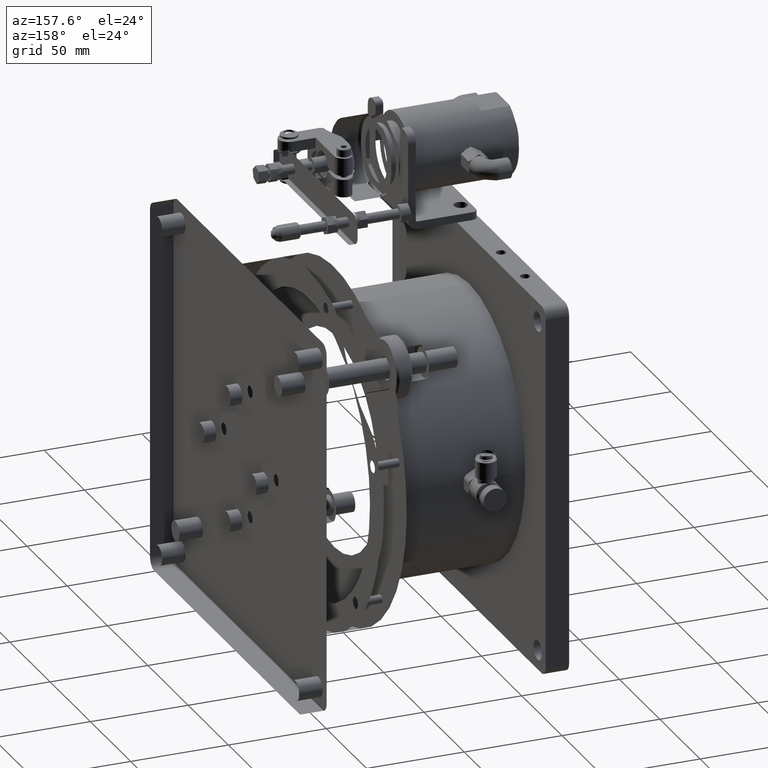
[diagram: clean part render]
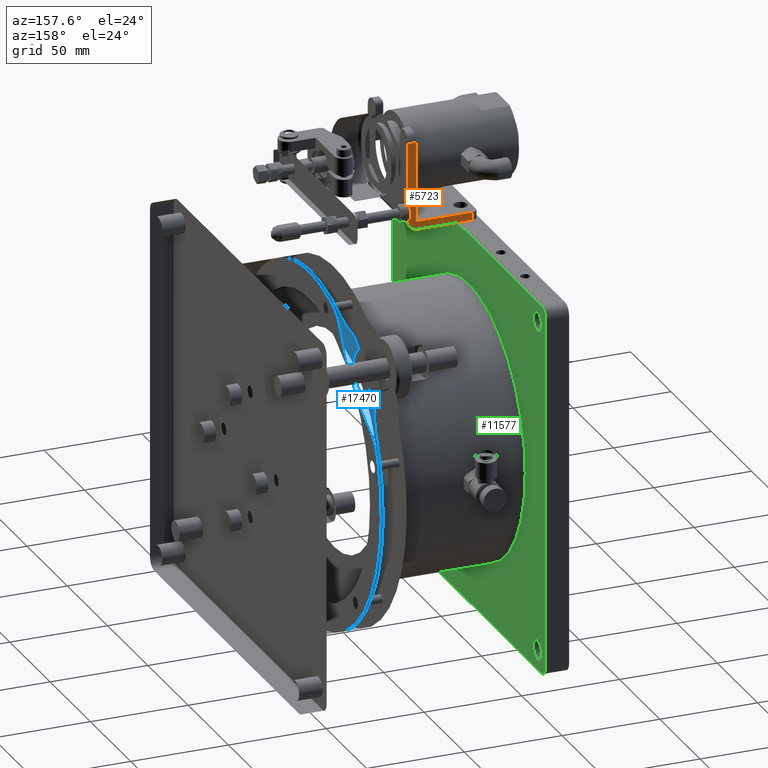
[diagram: same view with three faces highlighted in distinct colors, each labeled with its STEP entity id]
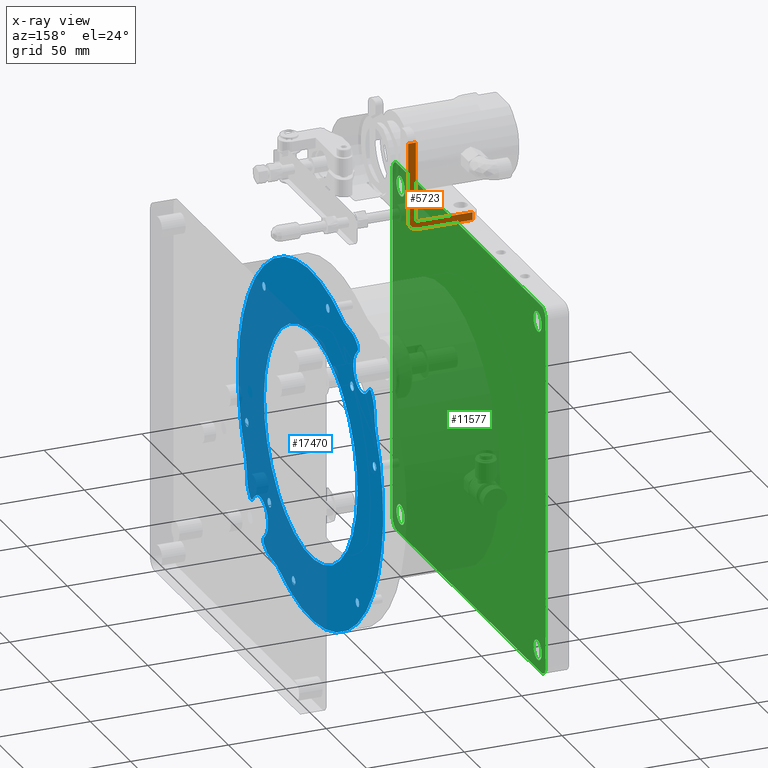
[diagram: x-ray of the same camera — body ghosted, the three highlighted faces saturated]
A machine part, auxiliary view with three faces highlighted in distinct colors.
The next image is the same camera in x-ray (body ghosted, the three faces saturated) — at least one of them is partly hidden behind the body in this view.
Their STEP definitions:

[orange] entity #5723 — the highlighted planar face has unit normal (-0, 1, -0).
#180 = VECTOR ( 'NONE', #14243, 1000.000000000000000 ) ;
#1328 = DIRECTION ( 'NONE',  ( 0.000000000000000000, 1.110223024625156294E-16, 1.000000000000000000 ) ) ;
#1596 = CIRCLE ( 'NONE', #16833, 4.736599999999979715 ) ;
#1737 = ORIENTED_EDGE ( 'NONE', *, *, #13602, .F. ) ;
#1895 = VECTOR ( 'NONE', #18884, 1000.000000000000000 ) ;
#1972 = EDGE_CURVE ( 'NONE', #2822, #14278, #8678, .T. ) ;
#2252 = CARTESIAN_POINT ( 'NONE',  ( 455.9949486138146426, -14.99999999999998579, 709.7720284903501806 ) ) ;
#2709 = DIRECTION ( 'NONE',  ( 2.276784909277185655E-17, -1.000000000000000000, 1.110223024625156294E-16 ) ) ;
#2822 = VERTEX_POINT ( 'NONE', #7828 ) ;
#3416 = PLANE ( 'NONE',  #21406 ) ;
#4237 = EDGE_CURVE ( 'NONE', #10252, #16388, #16296, .T. ) ;
#4426 = EDGE_CURVE ( 'NONE', #16388, #17155, #1596, .T. ) ;
#4634 = DIRECTION ( 'NONE',  ( -2.276784909277185963E-17, 1.000000000000000000, -1.110223024625156294E-16 ) ) ;
#5082 = CARTESIAN_POINT ( 'NONE',  ( 460.7315486138147662, -14.99999999999998401, 750.0354284903502275 ) ) ;
#5235 = CARTESIAN_POINT ( 'NONE',  ( 424.7315486138146525, -14.99999999999998934, 709.0354284903502275 ) ) ;
#5475 = AXIS2_PLACEMENT_3D ( 'NONE', #12896, #12786, #9901 ) ;
#5723 = ADVANCED_FACE ( 'NONE', ( #11632 ), #3416, .T. ) ;
#6076 = EDGE_CURVE ( 'NONE', #10252, #2822, #19675, .T. ) ;
#6296 = DIRECTION ( 'NONE',  ( 1.000000000000000000, -3.856209715102963619E-33, -3.473364927200039315E-17 ) ) ;
#6412 = CARTESIAN_POINT ( 'NONE',  ( 424.7315486138146525, -14.99999999999998934, 705.0354284903501139 ) ) ;
#6565 = CARTESIAN_POINT ( 'NONE',  ( 460.7315486138147094, -14.99999999999998224, 750.0354284903502275 ) ) ;
#6574 = VECTOR ( 'NONE', #21309, 1000.000000000000000 ) ;
#6599 = CARTESIAN_POINT ( 'NONE',  ( 427.7315486138146525, -14.99999999999998934, 705.0354284903501139 ) ) ;
#6668 = VECTOR ( 'NONE', #14990, 1000.000000000000000 ) ;
#7828 = CARTESIAN_POINT ( 'NONE',  ( 427.7315486138146525, -14.99999999999998934, 709.0354284903502275 ) ) ;
#8058 = EDGE_CURVE ( 'NONE', #17651, #16186, #12456, .T. ) ;
#8303 = ORIENTED_EDGE ( 'NONE', *, *, #6076, .T. ) ;
#8545 = VERTEX_POINT ( 'NONE', #5082 ) ;
#8678 = LINE ( 'NONE', #5235, #1895 ) ;
#8968 = LINE ( 'NONE', #6565, #6668 ) ;
#9136 = DIRECTION ( 'NONE',  ( 0.000000000000000000, 0.000000000000000000, 1.000000000000000000 ) ) ;
#9698 = CARTESIAN_POINT ( 'NONE',  ( 456.7315486138145957, -14.99999999999998757, 709.7720284903501806 ) ) ;
#9901 = DIRECTION ( 'NONE',  ( 0.000000000000000000, 0.000000000000000000, 1.000000000000000000 ) ) ;
#9916 = CARTESIAN_POINT ( 'NONE',  ( 456.7315486138146525, -14.99999999999998224, 750.0354284903502275 ) ) ;
#10176 = CARTESIAN_POINT ( 'NONE',  ( 460.7315486138145957, -14.99999999999998579, 709.0354284903502275 ) ) ;
#10252 = VERTEX_POINT ( 'NONE', #6599 ) ;
#10954 = LINE ( 'NONE', #10176, #19454 ) ;
#11192 = CARTESIAN_POINT ( 'NONE',  ( 442.7315486138145957, -14.99999999999998934, 705.0354284903501139 ) ) ;
#11417 = EDGE_LOOP ( 'NONE', ( #14870, #14004, #14614, #15986, #1737, #13579, #12446, #8303 ) ) ;
#11549 = CARTESIAN_POINT ( 'NONE',  ( 460.7315486138145957, -14.99999999999998579, 709.7720284903501806 ) ) ;
#11632 = FACE_OUTER_BOUND ( 'NONE', #11417, .T. ) ;
#12446 = ORIENTED_EDGE ( 'NONE', *, *, #4237, .F. ) ;
#12456 = LINE ( 'NONE', #14557, #6574 ) ;
#12786 = DIRECTION ( 'NONE',  ( 2.276784909277185655E-17, -1.000000000000000000, 1.110223024625156294E-16 ) ) ;
#12896 = CARTESIAN_POINT ( 'NONE',  ( 455.9949486138146426, -14.99999999999998579, 709.7720284903501806 ) ) ;
#12950 = CIRCLE ( 'NONE', #5475, 0.7365999999999761627 ) ;
#13579 = ORIENTED_EDGE ( 'NONE', *, *, #4426, .F. ) ;
#13602 = EDGE_CURVE ( 'NONE', #17155, #8545, #10954, .T. ) ;
#14004 = ORIENTED_EDGE ( 'NONE', *, *, #20379, .T. ) ;
#14243 = DIRECTION ( 'NONE',  ( 0.000000000000000000, 1.110223024625156294E-16, 1.000000000000000000 ) ) ;
#14278 = VERTEX_POINT ( 'NONE', #14282 ) ;
#14282 = CARTESIAN_POINT ( 'NONE',  ( 455.9949486138146426, -14.99999999999998757, 709.0354284903502275 ) ) ;
#14557 = CARTESIAN_POINT ( 'NONE',  ( 456.7315486138145957, -14.99999999999998934, 709.0354284903502275 ) ) ;
#14614 = ORIENTED_EDGE ( 'NONE', *, *, #8058, .T. ) ;
#14870 = ORIENTED_EDGE ( 'NONE', *, *, #1972, .T. ) ;
#14990 = DIRECTION ( 'NONE',  ( -1.000000000000000000, -2.276784909277146828E-17, 3.526214988115134457E-15 ) ) ;
#15102 = EDGE_CURVE ( 'NONE', #8545, #16186, #8968, .T. ) ;
#15751 = VECTOR ( 'NONE', #6296, 1000.000000000000000 ) ;
#15907 = CARTESIAN_POINT ( 'NONE',  ( 427.7315486138146525, -14.99999999999998934, 705.0354284903501139 ) ) ;
#15986 = ORIENTED_EDGE ( 'NONE', *, *, #15102, .F. ) ;
#16186 = VERTEX_POINT ( 'NONE', #9916 ) ;
#16296 = LINE ( 'NONE', #11192, #15751 ) ;
#16388 = VERTEX_POINT ( 'NONE', #20622 ) ;
#16833 = AXIS2_PLACEMENT_3D ( 'NONE', #2252, #2709, #9136 ) ;
#17155 = VERTEX_POINT ( 'NONE', #11549 ) ;
#17651 = VERTEX_POINT ( 'NONE', #9698 ) ;
#18884 = DIRECTION ( 'NONE',  ( 1.000000000000000000, 2.276784909277185963E-17, -2.527739028398629347E-33 ) ) ;
#19454 = VECTOR ( 'NONE', #21798, 1000.000000000000000 ) ;
#19675 = LINE ( 'NONE', #15907, #180 ) ;
#20379 = EDGE_CURVE ( 'NONE', #14278, #17651, #12950, .T. ) ;
#20622 = CARTESIAN_POINT ( 'NONE',  ( 455.9949486138146426, -14.99999999999998757, 705.0354284903501139 ) ) ;
#21309 = DIRECTION ( 'NONE',  ( 0.000000000000000000, 1.864450622875941762E-16, 1.000000000000000000 ) ) ;
#21406 = AXIS2_PLACEMENT_3D ( 'NONE', #6412, #4634, #1328 ) ;
#21798 = DIRECTION ( 'NONE',  ( 3.504180601225612135E-15, -0.000000000000000000, 1.000000000000000000 ) ) ;

[blue] entity #17470 — the highlighted planar face has unit normal (1, -0, -0).
#1 = CARTESIAN_POINT ( 'NONE',  ( 516.7315486138146525, -1.151856388049034967E-15, 610.0354284903502275 ) ) ;
#11 = DIRECTION ( 'NONE',  ( 0.000000000000000000, 0.000000000000000000, -1.000000000000000000 ) ) ;
#81 = CARTESIAN_POINT ( 'NONE',  ( 516.7315486138146525, 55.62401589808634128, 593.3998165531526183 ) ) ;
#103 = ORIENTED_EDGE ( 'NONE', *, *, #13744, .F. ) ;
#123 = CARTESIAN_POINT ( 'NONE',  ( 516.7315486138146525, -7.719931481626182368, 667.5231590594696627 ) ) ;
#178 = CARTESIAN_POINT ( 'NONE',  ( 516.7315486138146525, 52.65379172517454265, 663.0941005525645551 ) ) ;
#189 = CARTESIAN_POINT ( 'NONE',  ( 516.7315486138147662, 57.96124821162960927, 607.5352091903916971 ) ) ;
#229 = CARTESIAN_POINT ( 'NONE',  ( 516.7315486138147662, 5.492039062777954506, 667.7753638494918960 ) ) ;
#293 = CARTESIAN_POINT ( 'NONE',  ( 516.7315486138146525, 53.31385742774828174, 587.1960031962834137 ) ) ;
#329 = AXIS2_PLACEMENT_3D ( 'NONE', #1, #18514, #11418 ) ;
#330 = CARTESIAN_POINT ( 'NONE',  ( 516.7315486138147662, -49.93818642846483158, 556.9431047220784876 ) ) ;
#346 = AXIS2_PLACEMENT_3D ( 'NONE', #3445, #10223, #4992 ) ;
#347 = ORIENTED_EDGE ( 'NONE', *, *, #18131, .F. ) ;
#355 = EDGE_CURVE ( 'NONE', #15082, #9067, #11135, .T. ) ;
#360 = EDGE_CURVE ( 'NONE', #8481, #1607, #18165, .T. ) ;
#396 = CARTESIAN_POINT ( 'NONE',  ( 516.7315486138146525, 49.20802945744485868, 660.3892239331879637 ) ) ;
#406 = CARTESIAN_POINT ( 'NONE',  ( 516.7315486138146525, 57.99998141625346904, 612.0371022042066897 ) ) ;
#413 = LINE ( 'NONE', #2386, #11195 ) ;
#436 = CARTESIAN_POINT ( 'NONE',  ( 516.7315486138146525, -52.08728368707946998, 556.6756086704634754 ) ) ;
#446 = EDGE_LOOP ( 'NONE', ( #4597 ) ) ;
#467 = ORIENTED_EDGE ( 'NONE', *, *, #17469, .F. ) ;
#493 = CARTESIAN_POINT ( 'NONE',  ( 516.7315486138146525, 49.93818642841037558, 663.1277522585965016 ) ) ;
#515 = DIRECTION ( 'NONE',  ( 0.000000000000000000, 0.000000000000000000, 1.000000000000000000 ) ) ;
#533 = VERTEX_POINT ( 'NONE', #20114 ) ;
#575 = CARTESIAN_POINT ( 'NONE',  ( 516.7315486138147662, -47.68006271602732937, 577.0109367064944763 ) ) ;
#607 = CARTESIAN_POINT ( 'NONE',  ( 516.7315486138145388, 52.14248729402239491, 663.3726838816661484 ) ) ;
#618 = CARTESIAN_POINT ( 'NONE',  ( 516.7315486138147662, 9.442756330896040495, 552.7940710441282590 ) ) ;
#670 = FACE_BOUND ( 'NONE', #7610, .T. ) ;
#691 = CIRCLE ( 'NONE', #19451, 10.00000000000000888 ) ;
#697 = DIRECTION ( 'NONE',  ( 0.000000000000000000, 0.000000000000000000, 1.000000000000000000 ) ) ;
#741 = CARTESIAN_POINT ( 'NONE',  ( 516.7315486138146525, -56.72591398361462467, 536.3389517582596682 ) ) ;
#751 = VERTEX_POINT ( 'NONE', #20544 ) ;
#782 = VERTEX_POINT ( 'NONE', #20641 ) ;
#819 = CARTESIAN_POINT ( 'NONE',  ( 516.7315486138146525, -49.67425137835545712, 560.3611771119957439 ) ) ;
#832 = B_SPLINE_CURVE_WITH_KNOTS ( 'NONE', 3,
 ( #3278, #4831, #13277, #9953, #4720, #8065, #1516, #16710, #14828, #1418, #8171, #8279, #21583, #13168, #19923, #6619, #20140, #1198, #12952, #1632, #21688, #11293, #9624, #6504, #10061, #20035, #18271, #13384, #19708, #4941, #11724, #2856, #7951, #2160, #8929, #7149, #406, #15478, #189, #12263, #20563, #10175, #20249, #8606, #17152, #6727, #10598, #20352, #8714, #1948, #13914, #81, #15367, #6940, #5162, #18603, #293, #20665, #7047, #13495, #5050, #5276, #11951, #15264, #1845, #10287, #18715, #13710, #2054, #11831, #6830, #13601, #1744, #16940, #17365, #20462, #3715, #3396, #8505, #3508, #19026, #3818, #17053, #13814, #5472, #12061, #18919, #21909, #18823, #3615, #10388, #5372, #12160, #10492, #17259, #8823, #15583, #2721, #21233, #20777, #16141, #618, #4037, #19359, #19141, #9150, #2264, #12813, #7264, #14482, #2598, #19471, #14026, #5930, #14363, #2494, #7485, #5812, #14249, #19570, #3925, #11038, #9367, #6038, #21120, #14141, #950, #4374, #841, #20891, #10703, #7709, #5586, #12372, #11149, #10930, #5703, #12479, #9037, #12591, #17917, #12701, #17467, #10815 ),
 .UNSPECIFIED., .F., .F.,
 ( 4, 1, 1, 1, 1, 1, 1, 2, 2, 1, 1, 1, 1, 1, 1, 2, 2, 1, 1, 1, 1, 2, 2, 1, 1, 2, 2, 2, 1, 1, 2, 2, 1, 1, 1, 2, 2, 1, 1, 1, 1, 1, 1, 2, 2, 1, 1, 1, 1, 1, 1, 2, 2, 2, 1, 1, 1, 1, 1, 1, 2, 2, 1, 1, 1, 1, 1, 1, 2, 2, 1, 1, 1, 1, 2, 2, 1, 1, 2, 2, 2, 1, 1, 2, 2, 1, 1, 1, 2, 2, 1, 1, 1, 1, 1, 1, 2, 2, 1, 1, 1, 1, 1, 1, 2, 2, 4 ),
 ( 0.000000000000000000, 0.03124999999995722866, 0.04687499999993584299, 0.05468749999992433136, 0.05859374999991937699, 0.06054687499991772553, 0.06152343749991690675, 0.06201171874991649041, 0.06249999999991608102, 0.09374999999986100008, 0.1093749999998326200, 0.1171874999998184647, 0.1210937499998113731, 0.1230468749998086808, 0.1240234374998064742, 0.1245117187498062244, 0.1249999999998059746, 0.1562499999997437883, 0.1718749999997135625, 0.1796874999996992961, 0.1835937499996913302, 0.1855468749996881661, 0.1874999999996850297, 0.2031249999996566080, 0.2109374999996415090, 0.2148437499996339872, 0.2187499999996264377, 0.2499999999995730360, 0.2656249999995471955, 0.2734374999995342614, 0.2773437499995278221, 0.2812499999995213829, 0.2968749999994989563, 0.3046874999994869104, 0.3085937499994808597, 0.3105468749994787503, 0.3124999999994766409, 0.3437499999994424460, 0.3593749999994252931, 0.3671874999994159672, 0.3710937499994104161, 0.3730468749994076405, 0.3740234374994062527, 0.3745117187494055311, 0.3749999999994048094, 0.4062499999993178790, 0.4218749999992751909, 0.4296874999992539301, 0.4335937499992439936, 0.4355468749992398303, 0.4365234374992377209, 0.4370117187492374433, 0.4374999999992371658, 0.4999999999993084421, 0.5312499999993448574, 0.5468749999993622879, 0.5546874999993716138, 0.5585937499993763877, 0.5605468749993788302, 0.5615234374993794964, 0.5620117187493803845, 0.5624999999993811617, 0.5937499999994434452, 0.6093749999994746425, 0.6171874999994900746, 0.6210937499994975131, 0.6230468749995016209, 0.6240234374995036193, 0.6245117187495046185, 0.6249999999995056177, 0.6562499999995536903, 0.6718749999995778932, 0.6796874999995901057, 0.6835937499995962119, 0.6855468749995992095, 0.6874999999996020961, 0.7031249999996255218, 0.7109374999996374012, 0.7148437499996430633, 0.7187499999996488365, 0.7499999999996952438, 0.7656249999997184474, 0.7734374999997301048, 0.7773437499997358779, 0.7812499999997416511, 0.7968749999997646327, 0.8046874999997761790, 0.8085937499997819522, 0.8105468749997848388, 0.8124999999997876143, 0.8437499999998351319, 0.8593749999998586686, 0.8671874999998703260, 0.8710937499998762101, 0.8730468749998792077, 0.8740234374998809841, 0.8745117187498822053, 0.8749999999998834266, 0.9062499999999326095, 0.9218749999999571454, 0.9296874999999690248, 0.9335937499999754641, 0.9355468749999781286, 0.9365234374999795719, 0.9370117187499802380, 0.9374999999999807931, 1.000000000000000000 ),
 .UNSPECIFIED. ) ;
#841 = CARTESIAN_POINT ( 'NONE',  ( 516.7315486138147662, -22.92381607914202135, 556.7578571137916015 ) ) ;
#905 = CARTESIAN_POINT ( 'NONE',  ( 516.7315486138147662, -56.58841020076673090, 597.3129426241349620 ) ) ;
#922 = DIRECTION ( 'NONE',  ( -1.000000000000000000, 3.081487911019565733E-33, 3.473364927200038699E-17 ) ) ;
#950 = CARTESIAN_POINT ( 'NONE',  ( 516.7315486138145388, -22.64236054856531410, 556.6373867626855372 ) ) ;
#1016 = CARTESIAN_POINT ( 'NONE',  ( 516.7315486138146525, -57.10423559625668588, 620.2110265677735015 ) ) ;
#1114 = CARTESIAN_POINT ( 'NONE',  ( 516.7315486138146525, 50.40732328680361718, 659.2205595006605563 ) ) ;
#1128 = DIRECTION ( 'NONE',  ( -1.000000000000000000, 3.081487911019565733E-33, 3.473364927200038699E-17 ) ) ;
#1129 = CARTESIAN_POINT ( 'NONE',  ( 516.7315486138146525, -31.31506616900500006, 658.8914021051040208 ) ) ;
#1198 = CARTESIAN_POINT ( 'NONE',  ( 516.7315486138148799, 53.14703404875216819, 633.2603923224746723 ) ) ;
#1236 = CARTESIAN_POINT ( 'NONE',  ( 516.7315486138146525, -54.50898051384848486, 629.8974747402514822 ) ) ;
#1349 = CARTESIAN_POINT ( 'NONE',  ( 516.7315486138147662, -53.88961924455539076, 631.4911189939361975 ) ) ;
#1418 = CARTESIAN_POINT ( 'NONE',  ( 516.7315486138146525, 47.75878761382777071, 642.9458969575853189 ) ) ;
#1426 = CARTESIAN_POINT ( 'NONE',  ( 516.7315486138146525, 78.72053353947242726, 661.2451265407408982 ) ) ;
#1453 = CARTESIAN_POINT ( 'NONE',  ( 516.7315486138148799, 5.742494144023710057, 667.7509847328228716 ) ) ;
#1506 = ORIENTED_EDGE ( 'NONE', *, *, #21096, .T. ) ;
#1516 = CARTESIAN_POINT ( 'NONE',  ( 516.7315486138146525, 47.56948609284467011, 643.2192516195161716 ) ) ;
#1548 = DIRECTION ( 'NONE',  ( 0.000000000000000000, 0.000000000000000000, 1.000000000000000000 ) ) ;
#1553 = CARTESIAN_POINT ( 'NONE',  ( 516.7315486138145388, 11.64100749775769650, 666.8553397188175040 ) ) ;
#1563 = CARTESIAN_POINT ( 'NONE',  ( 516.7315486138146525, 53.35981981988547318, 660.4786280753148731 ) ) ;
#1600 = DIRECTION ( 'NONE',  ( -1.000000000000000000, 3.081487911019565391E-33, 3.473364927200038699E-17 ) ) ;
#1607 = VERTEX_POINT ( 'NONE', #7060 ) ;
#1620 = ORIENTED_EDGE ( 'NONE', *, *, #20270, .F. ) ;
#1632 = CARTESIAN_POINT ( 'NONE',  ( 516.7315486138147662, 53.20566015074687272, 633.1256549066375783 ) ) ;
#1666 = CARTESIAN_POINT ( 'NONE',  ( 516.7315486138146525, -49.22962710138246223, 559.7289214464950646 ) ) ;
#1681 = CARTESIAN_POINT ( 'NONE',  ( 516.7315486138147662, 53.27797096955247724, 662.3075983395067396 ) ) ;
#1708 = AXIS2_PLACEMENT_3D ( 'NONE', #18465, #1600, #18690 ) ;
#1744 = CARTESIAN_POINT ( 'NONE',  ( 516.7315486138146525, 39.75807596960180490, 567.7690949077843925 ) ) ;
#1763 = EDGE_CURVE ( 'NONE', #21162, #8481, #20644, .T. ) ;
#1778 = CARTESIAN_POINT ( 'NONE',  ( 516.7315486138147662, -50.14823356781539587, 556.8145308076242372 ) ) ;
#1782 = CARTESIAN_POINT ( 'NONE',  ( 516.7315486138145388, 6.980215437236375386, 667.6224815545100455 ) ) ;
#1834 = DIRECTION ( 'NONE',  ( 0.000000000000000000, 0.000000000000000000, 1.000000000000000000 ) ) ;
#1845 = CARTESIAN_POINT ( 'NONE',  ( 516.7315486138147662, 48.25219744417690748, 577.8511751187735399 ) ) ;
#1883 = CARTESIAN_POINT ( 'NONE',  ( 516.7315486138147662, -12.12445423880991235, 666.7541450502477574 ) ) ;
#1893 = CARTESIAN_POINT ( 'NONE',  ( 516.7315486138146525, 50.88201524746821036, 659.0737402420007811 ) ) ;
#1925 = CARTESIAN_POINT ( 'NONE',  ( 516.7315486138146525, -53.27797096955374911, 557.7632586411953071 ) ) ;
#1948 = CARTESIAN_POINT ( 'NONE',  ( 516.7315486138146525, 56.79439192216134558, 598.2705689840543073 ) ) ;
#1986 = CARTESIAN_POINT ( 'NONE',  ( 516.7315486138146525, -51.64846802458666986, 556.5432569699803480 ) ) ;
#2014 = VECTOR ( 'NONE', #19423, 1000.000000000000114 ) ;
#2033 = ORIENTED_EDGE ( 'NONE', *, *, #14865, .F. ) ;
#2042 = CARTESIAN_POINT ( 'NONE',  ( 516.7315486138146525, -1.151856388049034967E-15, 610.0354284903502275 ) ) ;
#2054 = CARTESIAN_POINT ( 'NONE',  ( 516.7315486138147662, 47.82350454793068906, 577.2190722130474114 ) ) ;
#2090 = CARTESIAN_POINT ( 'NONE',  ( 516.7315486138146525, -51.90639750256266183, 556.6107505809734448 ) ) ;
#2152 = CARTESIAN_POINT ( 'NONE',  ( 516.7315486138147662, 49.25251230249662626, 660.2937419132434798 ) ) ;
#2160 = CARTESIAN_POINT ( 'NONE',  ( 516.7315486138147662, 57.63684646266121092, 616.5204793667649028 ) ) ;
#2219 = CARTESIAN_POINT ( 'NONE',  ( 516.7315486138145388, -47.34705602174224026, 576.5340060724882960 ) ) ;
#2238 = CARTESIAN_POINT ( 'NONE',  ( 516.7315486138145388, -53.34535226173357358, 559.6281052035519679 ) ) ;
#2264 = CARTESIAN_POINT ( 'NONE',  ( 516.7315486138145388, 3.999070187237306673, 552.1388285451374713 ) ) ;
#2270 = DIRECTION ( 'NONE',  ( -0.000000000000000000, -0.1301958732610860314, 0.9914882927124168965 ) ) ;
#2355 = CARTESIAN_POINT ( 'NONE',  ( 516.7315486138147662, -52.27223417321130228, 560.7828883323740001 ) ) ;
#2369 = CARTESIAN_POINT ( 'NONE',  ( 516.7315486138145388, 49.57315742221388177, 659.8107738248462510 ) ) ;
#2386 = CARTESIAN_POINT ( 'NONE',  ( 516.7315486138146525, 78.39993190198637762, 663.6866230508061335 ) ) ;
#2450 = CARTESIAN_POINT ( 'NONE',  ( 516.7315486138145388, -54.00744185987399959, 588.7977461765151475 ) ) ;
#2494 = CARTESIAN_POINT ( 'NONE',  ( 516.7315486138146525, -8.459687102657271751, 552.6405475476553875 ) ) ;
#2557 = CARTESIAN_POINT ( 'NONE',  ( 516.7315486138147662, -53.31385742777484893, 632.8748537843164286 ) ) ;
#2574 = CARTESIAN_POINT ( 'NONE',  ( 516.7315486138147662, -52.38224970427175009, 560.7258429010117879 ) ) ;
#2598 = CARTESIAN_POINT ( 'NONE',  ( 516.7315486138148799, -4.246221342859000103, 552.1872578206076696 ) ) ;
#2628 = EDGE_CURVE ( 'NONE', #751, #7503, #11843, .T. ) ;
#2671 = CIRCLE ( 'NONE', #7623, 10.00000000000000888 ) ;
#2676 = CARTESIAN_POINT ( 'NONE',  ( 516.7315486138145388, -28.92419634093016612, 660.3705739164341821 ) ) ;
#2721 = CARTESIAN_POINT ( 'NONE',  ( 516.7315486138145388, 12.36380748117441541, 553.3683929848766638 ) ) ;
#2784 = CARTESIAN_POINT ( 'NONE',  ( 516.7315486138146525, -47.80591643722745943, 642.8773999943998660 ) ) ;
#2827 = AXIS2_PLACEMENT_3D ( 'NONE', #5486, #15593, #6952 ) ;
#2843 = CARTESIAN_POINT ( 'NONE',  ( 516.7315486138146525, -1.151856388049034967E-15, 610.0354284903502275 ) ) ;
#2856 = CARTESIAN_POINT ( 'NONE',  ( 516.7315486138146525, 57.48773056977188389, 617.7553599679321223 ) ) ;
#2889 = CARTESIAN_POINT ( 'NONE',  ( 516.7315486138146525, -47.90652720278879428, 642.7305476899664427 ) ) ;
#2917 = CARTESIAN_POINT ( 'NONE',  ( 516.7315486138146525, -52.85623189369493957, 557.1791965966563112 ) ) ;
#2980 = B_SPLINE_CURVE_WITH_KNOTS ( 'NONE', 3,
 ( #3590, #10363, #17128, #15130, #1925, #14227, #3797, #7683, #17444, #5786, #20980, #19444, #19116, #5681, #19222, #2238, #15662, #19332, #4240, #12564, #10574, #2574, #2355, #9011, #12347, #20867, #7350, #15777, #4011, #21093, #8906, #3904, #10679, #20752, #13999, #14454, #12457, #819 ),
 .UNSPECIFIED., .F., .F.,
 ( 4, 1, 1, 1, 2, 2, 2, 1, 1, 1, 2, 2, 2, 1, 1, 1, 2, 2, 2, 1, 1, 1, 2, 2, 4 ),
 ( 0.000000000000000000, 0.06250000000040048520, 0.09375000000060072780, 0.1093750000007008560, 0.1171875000007282924, 0.1250000000007557288, 0.2500000000010683676, 0.3125000000012470580, 0.3437500000013138379, 0.3593750000013471446, 0.3671875000013432588, 0.3750000000013393731, 0.5000000000012309043, 0.5625000000011756152, 0.5937500000011493029, 0.6093750000011360912, 0.6171875000011174395, 0.6250000000010986767, 0.7500000000006831202, 0.8125000000004767298, 0.8437500000003689271, 0.8593750000003136380, 0.8671875000002938760, 0.8750000000002740030, 1.000000000000000000 ),
 .UNSPECIFIED. ) ;
#2983 = FACE_BOUND ( 'NONE', #9200, .T. ) ;
#2997 = CARTESIAN_POINT ( 'NONE',  ( 516.7315486138145388, -49.58582583121066989, 640.1491358221225028 ) ) ;
#3011 = AXIS2_PLACEMENT_3D ( 'NONE', #10676, #6802, #13996 ) ;
#3105 = CARTESIAN_POINT ( 'NONE',  ( 516.7315486138147662, 22.64236054876590032, 663.4334702179730812 ) ) ;
#3199 = EDGE_CURVE ( 'NONE', #5706, #533, #21217, .T. ) ;
#3213 = CARTESIAN_POINT ( 'NONE',  ( 516.7315486138148799, 4.246221344156876576, 667.8835991599576118 ) ) ;
#3222 = CARTESIAN_POINT ( 'NONE',  ( 516.7315486138147662, 51.87413608704359547, 659.1124381502301048 ) ) ;
#3253 = DIRECTION ( 'NONE',  ( 0.000000000000000000, 0.000000000000000000, -1.000000000000000000 ) ) ;
#3264 = DIRECTION ( 'NONE',  ( -1.000000000000000000, 3.081487911019565391E-33, 3.473364927200038699E-17 ) ) ;
#3278 = CARTESIAN_POINT ( 'NONE',  ( 516.7315486138146525, 41.01219330882014447, 651.0476217991696331 ) ) ;
#3312 = DIRECTION ( 'NONE',  ( -1.000000000000000000, 3.081487911019565391E-33, 3.473364927200038699E-17 ) ) ;
#3321 = CARTESIAN_POINT ( 'NONE',  ( 516.7315486138147662, 32.52513150973950928, 658.0577241354529860 ) ) ;
#3326 = AXIS2_PLACEMENT_3D ( 'NONE', #15959, #18965, #3760 ) ;
#3396 = CARTESIAN_POINT ( 'NONE',  ( 516.7315486138146525, 33.18383869195156421, 562.4659531001418600 ) ) ;
#3430 = CARTESIAN_POINT ( 'NONE',  ( 516.7315486138146525, -52.85623189369493957, 557.1791965966563112 ) ) ;
#3435 = CARTESIAN_POINT ( 'NONE',  ( 516.7315486138146525, 27.28557337877556321, 661.2773390854566742 ) ) ;
#3444 = CARTESIAN_POINT ( 'NONE',  ( 516.7315486138146525, 52.59229684363610602, 659.4735879941742951 ) ) ;
#3445 = CARTESIAN_POINT ( 'NONE',  ( 516.7315486138146525, 44.12978210210856389, 699.7714988947334405 ) ) ;
#3469 = CIRCLE ( 'NONE', #1708, 95.00000000000008527 ) ;
#3477 = B_SPLINE_CURVE_WITH_KNOTS ( 'NONE', 3,
 ( #17355, #2369, #8811, #19131, #2152, #7362, #14015, #396, #13901, #12253, #20767, #17458, #9024, #19237, #20653, #6930, #4026, #9138, #13700, #10379, #493, #18811, #5265, #10803, #15679, #5460, #19016, #3809, #10588, #7250, #5575, #3916, #15793, #10693, #607, #17569, #178, #6131 ),
 .UNSPECIFIED., .F., .F.,
 ( 4, 1, 1, 1, 2, 2, 2, 1, 1, 1, 2, 2, 2, 1, 1, 1, 2, 2, 2, 1, 1, 1, 2, 2, 4 ),
 ( 0.000000000000000000, 0.06250000000030275782, 0.09375000000045413673, 0.1093750000005298262, 0.1171875000005463963, 0.1250000000005629663, 0.2500000000002901568, 0.3125000000001313949, 0.3437500000000522915, 0.3593750000000343059, 0.3671875000000464628, 0.3750000000000586198, 0.5000000000000309752, 0.5625000000000331957, 0.5937500000000355271, 0.6093750000000249800, 0.6171875000000304201, 0.6250000000000358602, 0.7499999999999674705, 0.8124999999999332756, 0.8437499999999115152, 0.8593749999998993028, 0.8671874999999010791, 0.8749999999999028555, 1.000000000000000000 ),
 .UNSPECIFIED. ) ;
#3508 = CARTESIAN_POINT ( 'NONE',  ( 516.7315486138146525, 32.95609753040317003, 562.3081157209431922 ) ) ;
#3541 = CARTESIAN_POINT ( 'NONE',  ( 516.7315486138146525, 57.94582611229448332, 685.3167756897975096 ) ) ;
#3542 = CARTESIAN_POINT ( 'NONE',  ( 516.7315486138146525, -49.31376210602012833, 557.6142521189756280 ) ) ;
#3546 = CARTESIAN_POINT ( 'NONE',  ( 516.7315486138146525, 22.83942529406341038, 663.3492859181030781 ) ) ;
#3555 = CARTESIAN_POINT ( 'NONE',  ( 516.7315486138145388, 53.05825177579114893, 659.9117950156206689 ) ) ;
#3562 = AXIS2_PLACEMENT_3D ( 'NONE', #9477, #11476, #19894 ) ;
#3590 = CARTESIAN_POINT ( 'NONE',  ( 516.7315486138146525, -52.85623189369493957, 557.1791965966563112 ) ) ;
#3615 = CARTESIAN_POINT ( 'NONE',  ( 516.7315486138146525, 23.14413432409287097, 556.8531954468110143 ) ) ;
#3676 = VERTEX_POINT ( 'NONE', #5883 ) ;
#3715 = CARTESIAN_POINT ( 'NONE',  ( 516.7315486138146525, 33.50145253867854933, 562.6883931826848766 ) ) ;
#3748 = EDGE_CURVE ( 'NONE', #7335, #13184, #10102, .T. ) ;
#3760 = DIRECTION ( 'NONE',  ( 0.000000000000000000, 0.000000000000000000, -1.000000000000000000 ) ) ;
#3797 = CARTESIAN_POINT ( 'NONE',  ( 516.7315486138146525, -53.31576756838436637, 557.8438177425275626 ) ) ;
#3809 = CARTESIAN_POINT ( 'NONE',  ( 516.7315486138147662, 50.95493276778555725, 663.5505958622255775 ) ) ;
#3818 = CARTESIAN_POINT ( 'NONE',  ( 516.7315486138145388, 32.88902065493978455, 562.2618672568444254 ) ) ;
#3823 = CARTESIAN_POINT ( 'NONE',  ( 516.7315486138146525, 70.00357133746881289, 665.8968642040869099 ) ) ;
#3904 = CARTESIAN_POINT ( 'NONE',  ( 516.7315486138146525, -50.49715964776862620, 560.8857425333587798 ) ) ;
#3916 = CARTESIAN_POINT ( 'NONE',  ( 516.7315486138147662, 52.03332362436832881, 663.4162258053949017 ) ) ;
#3925 = CARTESIAN_POINT ( 'NONE',  ( 516.7315486138146525, -11.76485950635730404, 553.2410365682039810 ) ) ;
#3948 = EDGE_CURVE ( 'NONE', #21056, #782, #10445, .T. ) ;
#4011 = CARTESIAN_POINT ( 'NONE',  ( 516.7315486138147662, -51.11008720201849087, 561.0202239864163403 ) ) ;
#4026 = CARTESIAN_POINT ( 'NONE',  ( 516.7315486138146525, 49.19323242956284759, 662.1779263017865560 ) ) ;
#4037 = CARTESIAN_POINT ( 'NONE',  ( 516.7315486138147662, 7.719931477792244756, 552.5476979204283907 ) ) ;
#4073 = DIRECTION ( 'NONE',  ( 0.000000000000000000, -0.7071067811865410224, -0.7071067811865540120 ) ) ;
#4110 = ORIENTED_EDGE ( 'NONE', *, *, #19230, .T. ) ;
#4199 = VERTEX_POINT ( 'NONE', #4413 ) ;
#4240 = CARTESIAN_POINT ( 'NONE',  ( 516.7315486138145388, -53.05825177579296792, 560.1590619650497729 ) ) ;
#4299 = VERTEX_POINT ( 'NONE', #18282 ) ;
#4334 = CARTESIAN_POINT ( 'NONE',  ( 516.7315486138146525, -57.57909645214525796, 603.0561224500692106 ) ) ;
#4374 = CARTESIAN_POINT ( 'NONE',  ( 516.7315486138146525, -22.83942529396153276, 556.7215710625760039 ) ) ;
#4398 = ORIENTED_EDGE ( 'NONE', *, *, #19605, .T. ) ;
#4413 = CARTESIAN_POINT ( 'NONE',  ( 516.7315486138146525, 80.76246336394564196, 649.7522323822464614 ) ) ;
#4423 = DIRECTION ( 'NONE',  ( 0.000000000000000000, -6.938893903907222067E-15, -1.000000000000000000 ) ) ;
#4443 = CARTESIAN_POINT ( 'NONE',  ( 516.7315486138147662, -57.63684646269810230, 603.5503776141556500 ) ) ;
#4499 = DIRECTION ( 'NONE',  ( -1.000000000000000000, 3.081487911019565391E-33, 3.473364927200038699E-17 ) ) ;
#4500 = VECTOR ( 'NONE', #20732, 1000.000000000000114 ) ;
#4531 = ORIENTED_EDGE ( 'NONE', *, *, #10757, .F. ) ;
#4533 = VERTEX_POINT ( 'NONE', #2917 ) ;
#4549 = CIRCLE ( 'NONE', #13060, 2.099999999999990763 ) ;
#4555 = CARTESIAN_POINT ( 'NONE',  ( 516.7315486138146525, -56.36772539295063211, 623.8384182016653767 ) ) ;
#4584 = VERTEX_POINT ( 'NONE', #4892 ) ;
#4597 = ORIENTED_EDGE ( 'NONE', *, *, #12764, .F. ) ;
#4636 = FACE_BOUND ( 'NONE', #8185, .T. ) ;
#4640 = CARTESIAN_POINT ( 'NONE',  ( 516.7315486138146525, 50.44319958497209910, 659.2060919425045995 ) ) ;
#4650 = CARTESIAN_POINT ( 'NONE',  ( 516.7315486138146525, -56.86934205632024231, 621.4325129084326136 ) ) ;
#4720 = CARTESIAN_POINT ( 'NONE',  ( 516.7315486138146525, 46.89708858698826077, 644.1677958715033583 ) ) ;
#4757 = CARTESIAN_POINT ( 'NONE',  ( 516.7315486138148799, -23.09022641636839879, 663.2410886410699504 ) ) ;
#4831 = CARTESIAN_POINT ( 'NONE',  ( 516.7315486138146525, 42.26638408717258244, 649.7934310208172519 ) ) ;
#4867 = CARTESIAN_POINT ( 'NONE',  ( 516.7315486138146525, 41.01219330882014447, 651.0476217991696331 ) ) ;
#4892 = CARTESIAN_POINT ( 'NONE',  ( 516.7315486138146525, 76.90043303733037305, 665.8146665513982043 ) ) ;
#4914 = CIRCLE ( 'NONE', #20157, 2.099999999999990763 ) ;
#4936 = CARTESIAN_POINT ( 'NONE',  ( 516.7315486138146525, -55.77923806104942628, 533.1349954530207924 ) ) ;
#4941 = CARTESIAN_POINT ( 'NONE',  ( 516.7315486138145388, 56.97329008560578956, 620.9458041240025068 ) ) ;
#4976 = EDGE_CURVE ( 'NONE', #8895, #8139, #14354, .T. ) ;
#4984 = CARTESIAN_POINT ( 'NONE',  ( 516.7315486138145388, -15.21601213576607314, 666.0193791156002590 ) ) ;
#4992 = DIRECTION ( 'NONE',  ( 0.000000000000000000, 0.000000000000000000, 1.000000000000000000 ) ) ;
#5050 = CARTESIAN_POINT ( 'NONE',  ( 516.7315486138146525, 52.48201953611165038, 585.2730153385563199 ) ) ;
#5055 = CARTESIAN_POINT ( 'NONE',  ( 516.7315486138146525, 39.71680389189769045, 690.7978918542951305 ) ) ;
#5090 = CARTESIAN_POINT ( 'NONE',  ( 516.7315486138146525, -13.55694175195200479, 666.4326535831748970 ) ) ;
#5091 = EDGE_CURVE ( 'NONE', #18418, #21162, #2671, .T. ) ;
#5162 = CARTESIAN_POINT ( 'NONE',  ( 516.7315486138146525, 53.56447771556792503, 587.7878090854095490 ) ) ;
#5196 = CARTESIAN_POINT ( 'NONE',  ( 516.7315486138146525, -50.30646831817344378, 556.7345890898030802 ) ) ;
#5202 = CARTESIAN_POINT ( 'NONE',  ( 516.7315486138146525, -21.23768231427841258, 664.0428703498016603 ) ) ;
#5265 = CARTESIAN_POINT ( 'NONE',  ( 516.7315486138147662, 50.25824909883673541, 663.3133716044205812 ) ) ;
#5276 = CARTESIAN_POINT ( 'NONE',  ( 516.7315486138147662, 51.24191059619451494, 582.7498551139753999 ) ) ;
#5305 = CARTESIAN_POINT ( 'NONE',  ( 516.7315486138146525, -49.20802945744485868, 559.6816330475082850 ) ) ;
#5319 = CARTESIAN_POINT ( 'NONE',  ( 516.7315486138146525, 53.49217152036210621, 660.9174437377926097 ) ) ;
#5372 = CARTESIAN_POINT ( 'NONE',  ( 516.7315486138146525, 23.06438933995076823, 556.8185622685091403 ) ) ;
#5402 = CARTESIAN_POINT ( 'NONE',  ( 516.7315486138147662, -49.30953783711776595, 559.8870846527947833 ) ) ;
#5428 = CARTESIAN_POINT ( 'NONE',  ( 516.7315486138147662, -55.98395062580441106, 594.8194163551662541 ) ) ;
#5439 = VERTEX_POINT ( 'NONE', #9824 ) ;
#5460 = CARTESIAN_POINT ( 'NONE',  ( 516.7315486138146525, 50.35379544283529185, 663.3578823049531366 ) ) ;
#5472 = CARTESIAN_POINT ( 'NONE',  ( 516.7315486138147662, 26.01889298542630513, 558.1836516399102948 ) ) ;
#5486 = CARTESIAN_POINT ( 'NONE',  ( 516.7315486138146525, -1.151856388049034967E-15, 610.0354284903502275 ) ) ;
#5518 = CARTESIAN_POINT ( 'NONE',  ( 516.7315486138146525, 52.85623189369492536, 662.8916603840441439 ) ) ;
#5541 = CARTESIAN_POINT ( 'NONE',  ( 516.7315486138147662, -42.26638408545800019, 570.2774259581688057 ) ) ;
#5546 = EDGE_LOOP ( 'NONE', ( #6190, #7538 ) ) ;
#5553 = VERTEX_POINT ( 'NONE', #14695 ) ;
#5566 = ORIENTED_EDGE ( 'NONE', *, *, #15178, .T. ) ;
#5575 = CARTESIAN_POINT ( 'NONE',  ( 516.7315486138146525, 51.90639750266183938, 663.4601063997057508 ) ) ;
#5586 = CARTESIAN_POINT ( 'NONE',  ( 516.7315486138146525, -27.28557337341866074, 558.7935178925665696 ) ) ;
#5664 = VERTEX_POINT ( 'NONE', #9199 ) ;
#5681 = CARTESIAN_POINT ( 'NONE',  ( 516.7315486138147662, -53.38079731505353465, 559.5382688426236655 ) ) ;
#5703 = CARTESIAN_POINT ( 'NONE',  ( 516.7315486138148799, -32.52513150909081929, 562.0131328449233479 ) ) ;
#5706 = VERTEX_POINT ( 'NONE', #15057 ) ;
#5736 = LINE ( 'NONE', #19173, #6000 ) ;
#5769 = CARTESIAN_POINT ( 'NONE',  ( 516.7315486138146525, -46.89708858567554017, 575.9030611078840138 ) ) ;
#5786 = CARTESIAN_POINT ( 'NONE',  ( 516.7315486138147662, -53.51516737185623640, 558.4598779862052425 ) ) ;
#5812 = CARTESIAN_POINT ( 'NONE',  ( 516.7315486138146525, -11.03101873980342162, 553.0931267018892186 ) ) ;
#5839 = CARTESIAN_POINT ( 'NONE',  ( 516.7315486138146525, -75.28134719944836206, 552.0896023780570658 ) ) ;
#5845 = EDGE_LOOP ( 'NONE', ( #347 ) ) ;
#5858 = EDGE_CURVE ( 'NONE', #7465, #6983, #6526, .T. ) ;
#5883 = CARTESIAN_POINT ( 'NONE',  ( 516.7315486138146525, 41.01219330882014447, 651.0476217991696331 ) ) ;
#5930 = CARTESIAN_POINT ( 'NONE',  ( 516.7315486138146525, -5.742494144020061420, 552.3198722478773561 ) ) ;
#5942 = ORIENTED_EDGE ( 'NONE', *, *, #14290, .F. ) ;
#5993 = LINE ( 'NONE', #17759, #2014 ) ;
#5995 = CARTESIAN_POINT ( 'NONE',  ( 516.7315486138147662, -53.39804172766633172, 632.6777890389247432 ) ) ;
#6000 = VECTOR ( 'NONE', #4073, 1000.000000000000000 ) ;
#6038 = CARTESIAN_POINT ( 'NONE',  ( 516.7315486138146525, -19.86204624984563694, 555.5264479765122587 ) ) ;
#6102 = CARTESIAN_POINT ( 'NONE',  ( 516.7315486138146525, -57.58705306418435299, 617.0156439274344393 ) ) ;
#6131 = CARTESIAN_POINT ( 'NONE',  ( 516.7315486138146525, 52.85623189369492536, 662.8916603840441439 ) ) ;
#6190 = ORIENTED_EDGE ( 'NONE', *, *, #16072, .F. ) ;
#6215 = CARTESIAN_POINT ( 'NONE',  ( 516.7315486138146525, -56.74379436668353804, 598.0288822362869041 ) ) ;
#6305 = VERTEX_POINT ( 'NONE', #20104 ) ;
#6326 = CARTESIAN_POINT ( 'NONE',  ( 516.7315486138146525, -57.73993535918977216, 615.5274675526238752 ) ) ;
#6415 = FACE_OUTER_BOUND ( 'NONE', #17146, .T. ) ;
#6434 = CARTESIAN_POINT ( 'NONE',  ( 516.7315486138147662, -34.13242360979943868, 656.9324784080918107 ) ) ;
#6458 = CARTESIAN_POINT ( 'NONE',  ( 516.7315486138146525, 57.98275605729618576, 549.9526724330526122 ) ) ;
#6481 = ORIENTED_EDGE ( 'NONE', *, *, #4976, .F. ) ;
#6504 = CARTESIAN_POINT ( 'NONE',  ( 516.7315486138145388, 55.98395062565726477, 625.2514406259969064 ) ) ;
#6507 = DIRECTION ( 'NONE',  ( 0.000000000000000000, 0.000000000000000000, 1.000000000000000000 ) ) ;
#6526 = CIRCLE ( 'NONE', #16096, 10.00000000000000888 ) ;
#6540 = CARTESIAN_POINT ( 'NONE',  ( 516.7315486138146525, 32.76787434283649958, 657.8921654585558372 ) ) ;
#6550 = CARTESIAN_POINT ( 'NONE',  ( 516.7315486138146525, 53.33725084249000759, 660.4234139509668466 ) ) ;
#6566 = CARTESIAN_POINT ( 'NONE',  ( 516.7315486138146525, -79.20591775570385096, 586.7122667919443302 ) ) ;
#6592 = AXIS2_PLACEMENT_3D ( 'NONE', #13637, #13308, #1548 ) ;
#6619 = CARTESIAN_POINT ( 'NONE',  ( 516.7315486138146525, 52.89778271963162837, 633.8246135537488044 ) ) ;
#6656 = CARTESIAN_POINT ( 'NONE',  ( 516.7315486138146525, 11.03101873979245084, 666.9777302788128281 ) ) ;
#6727 = CARTESIAN_POINT ( 'NONE',  ( 516.7315486138146525, 57.10423559621749945, 599.8598304125774803 ) ) ;
#6763 = CARTESIAN_POINT ( 'NONE',  ( 516.7315486138146525, -49.57315742223739363, 560.2600831558778509 ) ) ;
#6768 = CARTESIAN_POINT ( 'NONE',  ( 516.7315486138146525, -6.485050877859009688, 667.6722749527784799 ) ) ;
#6782 = CARTESIAN_POINT ( 'NONE',  ( 516.7315486138146525, 55.86143571373796135, 680.0389998278179746 ) ) ;
#6802 = DIRECTION ( 'NONE',  ( -1.000000000000000000, 3.081487911019565391E-33, 3.473364927200038699E-17 ) ) ;
#6830 = CARTESIAN_POINT ( 'NONE',  ( 516.7315486138146525, 45.78026742348776423, 574.2478108128652821 ) ) ;
#6868 = CARTESIAN_POINT ( 'NONE',  ( 516.7315486138146525, -50.35379544283969722, 556.7129746757449311 ) ) ;
#6872 = CARTESIAN_POINT ( 'NONE',  ( 516.7315486138146525, 32.81635627734578264, 657.8589330382618527 ) ) ;
#6930 = CARTESIAN_POINT ( 'NONE',  ( 516.7315486138146525, 49.18513101031655310, 662.1585884755967299 ) ) ;
#6940 = CARTESIAN_POINT ( 'NONE',  ( 516.7315486138146525, 53.88961924436628692, 588.5797379860479168 ) ) ;
#6948 = CARTESIAN_POINT ( 'NONE',  ( 516.7315486138146525, -79.20591775570385096, 588.8122667919443529 ) ) ;
#6952 = DIRECTION ( 'NONE',  ( 0.000000000000000000, 0.000000000000000000, 1.000000000000000000 ) ) ;
#6963 = EDGE_CURVE ( 'NONE', #8699, #8699, #19306, .T. ) ;
#6974 = CARTESIAN_POINT ( 'NONE',  ( 516.7315486138146525, -49.47223149620140958, 557.3813117436266111 ) ) ;
#6979 = CARTESIAN_POINT ( 'NONE',  ( 516.7315486138146525, -23.14413432421406824, 663.2176615338418060 ) ) ;
#6983 = VERTEX_POINT ( 'NONE', #13574 ) ;
#6989 = CARTESIAN_POINT ( 'NONE',  ( 516.7315486138147662, 52.22401495389024717, 659.2650723618639859 ) ) ;
#7047 = CARTESIAN_POINT ( 'NONE',  ( 516.7315486138145388, 53.25333466117492520, 587.0553664508964857 ) ) ;
#7060 = CARTESIAN_POINT ( 'NONE',  ( 516.7315486138146525, 58.14012754598768140, 682.3176916600675668 ) ) ;
#7079 = CARTESIAN_POINT ( 'NONE',  ( 516.7315486138146525, -52.03332362431045510, 556.6546311752929341 ) ) ;
#7103 = VERTEX_POINT ( 'NONE', #12011 ) ;
#7149 = CARTESIAN_POINT ( 'NONE',  ( 516.7315486138148799, 57.89659994520005881, 614.0344986802508629 ) ) ;
#7183 = CARTESIAN_POINT ( 'NONE',  ( 516.7315486138146525, -52.65379172512028561, 556.9767564280816714 ) ) ;
#7191 = DIRECTION ( 'NONE',  ( 0.000000000000000000, 0.000000000000000000, 1.000000000000000000 ) ) ;
#7250 = CARTESIAN_POINT ( 'NONE',  ( 516.7315486138146525, 51.64846802471892317, 663.5276000106920264 ) ) ;
#7264 = CARTESIAN_POINT ( 'NONE',  ( 516.7315486138145388, -1.000836857057035845, 552.0354191984832823 ) ) ;
#7333 = CARTESIAN_POINT ( 'NONE',  ( 516.7315486138146525, -44.05427972079517218, 572.2364924579355829 ) ) ;
#7335 = VERTEX_POINT ( 'NONE', #20589 ) ;
#7350 = CARTESIAN_POINT ( 'NONE',  ( 516.7315486138146525, -51.87413608689661260, 560.9584188305024099 ) ) ;
#7352 = ORIENTED_EDGE ( 'NONE', *, *, #360, .T. ) ;
#7362 = CARTESIAN_POINT ( 'NONE',  ( 516.7315486138146525, 49.22962710137164777, 660.3419355342166455 ) ) ;
#7465 = VERTEX_POINT ( 'NONE', #17830 ) ;
#7485 = CARTESIAN_POINT ( 'NONE',  ( 516.7315486138146525, -10.17559807764186353, 552.9311928941281167 ) ) ;
#7500 = DIRECTION ( 'NONE',  ( 0.000000000000000000, 0.000000000000000000, 1.000000000000000000 ) ) ;
#7503 = VERTEX_POINT ( 'NONE', #21149 ) ;
#7534 = EDGE_CURVE ( 'NONE', #10473, #10473, #20710, .T. ) ;
#7538 = ORIENTED_EDGE ( 'NONE', *, *, #355, .F. ) ;
#7552 = CARTESIAN_POINT ( 'NONE',  ( 516.7315486138146525, -55.03378468269416146, 591.5406411369152693 ) ) ;
#7599 = CARTESIAN_POINT ( 'NONE',  ( 516.7315486138146525, 42.82782336949752988, 689.8566159676094003 ) ) ;
#7610 = EDGE_LOOP ( 'NONE', ( #14708 ) ) ;
#7619 = EDGE_CURVE ( 'NONE', #19967, #7503, #11294, .T. ) ;
#7623 = AXIS2_PLACEMENT_3D ( 'NONE', #16070, #12305, #7191 ) ;
#7653 = CIRCLE ( 'NONE', #6592, 2.000000000000001776 ) ;
#7664 = CARTESIAN_POINT ( 'NONE',  ( 516.7315486138147662, -24.53725250648647460, 662.5932537956419992 ) ) ;
#7681 = DIRECTION ( 'NONE',  ( 0.000000000000000000, 0.000000000000000000, 1.000000000000000000 ) ) ;
#7683 = CARTESIAN_POINT ( 'NONE',  ( 516.7315486138146525, -53.32245381460538880, 557.8587406611394499 ) ) ;
#7709 = CARTESIAN_POINT ( 'NONE',  ( 516.7315486138147662, -24.76241315010457100, 557.5534089533306314 ) ) ;
#7773 = CARTESIAN_POINT ( 'NONE',  ( 516.7315486138148799, -56.94230178848120971, 621.0664472300260286 ) ) ;
#7836 = DIRECTION ( 'NONE',  ( -1.000000000000000000, 3.081487911019565391E-33, 3.473364927200038699E-17 ) ) ;
#7879 = CARTESIAN_POINT ( 'NONE',  ( 516.7315486138146525, -56.79439192214589838, 621.8002879967046965 ) ) ;
#7897 = CARTESIAN_POINT ( 'NONE',  ( 516.7315486138146525, -78.39993190198637762, 556.3842339298942079 ) ) ;
#7951 = CARTESIAN_POINT ( 'NONE',  ( 516.7315486138145388, 57.57909645207886484, 617.0147345310265337 ) ) ;
#7998 = CARTESIAN_POINT ( 'NONE',  ( 516.7315486138146525, -47.85673696824488843, 642.8033028331220748 ) ) ;
#8065 = CARTESIAN_POINT ( 'NONE',  ( 516.7315486138146525, 47.34705602244551415, 643.5368509075084376 ) ) ;
#8089 = CARTESIAN_POINT ( 'NONE',  ( 516.7315486138146525, 50.38799597802756836, 659.2286563710828204 ) ) ;
#8101 = CARTESIAN_POINT ( 'NONE',  ( 516.7315486138147662, -33.02449969082461934, 657.7154857686990681 ) ) ;
#8126 = VERTEX_POINT ( 'NONE', #6566 ) ;
#8139 = VERTEX_POINT ( 'NONE', #6782 ) ;
#8143 = CIRCLE ( 'NONE', #20504, 2.099999999999990763 ) ;
#8158 = CIRCLE ( 'NONE', #3562, 10.00000000000000888 ) ;
#8171 = CARTESIAN_POINT ( 'NONE',  ( 516.7315486138146525, 47.77356123350441663, 642.9244491453000592 ) ) ;
#8185 = EDGE_LOOP ( 'NONE', ( #20323 ) ) ;
#8207 = CARTESIAN_POINT ( 'NONE',  ( 516.7315486138146525, -6.979306043276420013, 667.6145249420097798 ) ) ;
#8279 = CARTESIAN_POINT ( 'NONE',  ( 516.7315486138146525, 48.85597361562381025, 641.3504946567438765 ) ) ;
#8282 = DIRECTION ( 'NONE',  ( -1.000000000000000000, 3.081487911019565391E-33, 3.473364927200038699E-17 ) ) ;
#8319 = CARTESIAN_POINT ( 'NONE',  ( 516.7315486138145388, 38.50356035160770318, 653.5562547563821454 ) ) ;
#8328 = CARTESIAN_POINT ( 'NONE',  ( 516.7315486138144252, 53.34535226173383649, 660.4427517771495104 ) ) ;
#8370 = CIRCLE ( 'NONE', #14752, 2.000000000000001776 ) ;
#8431 = CARTESIAN_POINT ( 'NONE',  ( 516.7315486138147662, -52.42134464985467446, 556.8187801054721149 ) ) ;
#8436 = CARTESIAN_POINT ( 'NONE',  ( 516.7315486138146525, 13.80298971221931836, 666.4031538830969339 ) ) ;
#8481 = VERTEX_POINT ( 'NONE', #3541 ) ;
#8505 = CARTESIAN_POINT ( 'NONE',  ( 516.7315486138147662, 33.02449969057030899, 562.3553712117682153 ) ) ;
#8542 = CARTESIAN_POINT ( 'NONE',  ( 516.7315486138146525, 22.98006203945291048, 663.2887631515264957 ) ) ;
#8550 = CARTESIAN_POINT ( 'NONE',  ( 516.7315486138146525, 52.85623189369492536, 662.8916603840441439 ) ) ;
#8606 = CARTESIAN_POINT ( 'NONE',  ( 516.7315486138147662, 57.58705306415448888, 603.0552130529996475 ) ) ;
#8647 = CARTESIAN_POINT ( 'NONE',  ( 516.7315486138147662, -12.00654625361982930, 666.7792228571062196 ) ) ;
#8693 = EDGE_LOOP ( 'NONE', ( #17624 ) ) ;
#8699 = VERTEX_POINT ( 'NONE', #20646 ) ;
#8713 = CARTESIAN_POINT ( 'NONE',  ( 516.7315486138146525, -79.82118747725985486, 567.2076051208540548 ) ) ;
#8714 = CARTESIAN_POINT ( 'NONE',  ( 516.7315486138147662, 56.81991122846606146, 598.3944209925648465 ) ) ;
#8765 = CARTESIAN_POINT ( 'NONE',  ( 516.7315486138146525, 53.22094543496126562, 662.4175679248140796 ) ) ;
#8779 = CARTESIAN_POINT ( 'NONE',  ( 516.7315486138147662, -45.97672453518780600, 574.6581856269150421 ) ) ;
#8782 = EDGE_CURVE ( 'NONE', #6305, #4299, #8370, .T. ) ;
#8811 = CARTESIAN_POINT ( 'NONE',  ( 516.7315486138146525, 49.43809583412916453, 659.9737619451769888 ) ) ;
#8823 = CARTESIAN_POINT ( 'NONE',  ( 516.7315486138147662, 13.55694175221511344, 553.6382033975806962 ) ) ;
#8868 = CIRCLE ( 'NONE', #18444, 10.00000000000000888 ) ;
#8895 = VERTEX_POINT ( 'NONE', #3823 ) ;
#8906 = CARTESIAN_POINT ( 'NONE',  ( 516.7315486138147662, -50.62408576953694705, 560.9296231276783828 ) ) ;
#8929 = CARTESIAN_POINT ( 'NONE',  ( 516.7315486138147662, 57.66401256451140966, 616.2743379196110709 ) ) ;
#8932 = LINE ( 'NONE', #7897, #16618 ) ;
#8955 = VERTEX_POINT ( 'NONE', #7599 ) ;
#9011 = CARTESIAN_POINT ( 'NONE',  ( 516.7315486138145388, -52.22401495388984216, 560.8057846188431768 ) ) ;
#9024 = CARTESIAN_POINT ( 'NONE',  ( 516.7315486138146525, 49.10580536267941199, 661.9418259929117312 ) ) ;
#9037 = CARTESIAN_POINT ( 'NONE',  ( 516.7315486138146525, -32.76787434264705468, 562.1786915220496894 ) ) ;
#9067 = VERTEX_POINT ( 'NONE', #16584 ) ;
#9088 = FACE_BOUND ( 'NONE', #18077, .T. ) ;
#9106 = CARTESIAN_POINT ( 'NONE',  ( 516.7315486138146525, -51.85177684943895571, 584.0165355030565024 ) ) ;
#9138 = CARTESIAN_POINT ( 'NONE',  ( 516.7315486138147662, 49.31376210595085752, 662.4566048616219405 ) ) ;
#9150 = CARTESIAN_POINT ( 'NONE',  ( 516.7315486138147662, 6.238909429593774369, 552.3714159258407790 ) ) ;
#9199 = CARTESIAN_POINT ( 'NONE',  ( 516.7315486138146525, -51.20969805039212730, 531.3148949508788519 ) ) ;
#9200 = EDGE_LOOP ( 'NONE', ( #1620, #18731 ) ) ;
#9323 = CARTESIAN_POINT ( 'NONE',  ( 516.7315486138146525, -56.66703550559203961, 597.6716210093652535 ) ) ;
#9367 = CARTESIAN_POINT ( 'NONE',  ( 516.7315486138146525, -16.63561193548570216, 554.4114125918456466 ) ) ;
#9413 = ORIENTED_EDGE ( 'NONE', *, *, #21623, .F. ) ;
#9436 = CARTESIAN_POINT ( 'NONE',  ( 516.7315486138145388, -57.71555624246647653, 615.7779226344119934 ) ) ;
#9477 = CARTESIAN_POINT ( 'NONE',  ( 516.7315486138146525, -49.90773931778108619, 541.2297778780028921 ) ) ;
#9519 = AXIS2_PLACEMENT_3D ( 'NONE', #11909, #9693, #9802 ) ;
#9549 = CARTESIAN_POINT ( 'NONE',  ( 516.7315486138146525, -45.78026742294012763, 645.8230461679887640 ) ) ;
#9554 = CIRCLE ( 'NONE', #12336, 95.00000000000008527 ) ;
#9624 = CARTESIAN_POINT ( 'NONE',  ( 516.7315486138147662, 55.03378468249798061, 628.5302158444021643 ) ) ;
#9661 = CARTESIAN_POINT ( 'NONE',  ( 516.7315486138146525, -33.50145253964738146, 657.3824637971277980 ) ) ;
#9663 = ORIENTED_EDGE ( 'NONE', *, *, #12404, .F. ) ;
#9693 = DIRECTION ( 'NONE',  ( -1.000000000000000000, 3.081487911019565391E-33, 3.473364927200038699E-17 ) ) ;
#9770 = CARTESIAN_POINT ( 'NONE',  ( 516.7315486138146525, -44.12978210210856389, 520.2993580859669009 ) ) ;
#9771 = CARTESIAN_POINT ( 'NONE',  ( 516.7315486138146525, -48.70546069826519187, 641.5343145560034372 ) ) ;
#9802 = DIRECTION ( 'NONE',  ( 0.000000000000000000, 0.000000000000000000, -1.000000000000000000 ) ) ;
#9824 = CARTESIAN_POINT ( 'NONE',  ( 516.7315486138146525, -41.01219330882015157, 569.0232351815307084 ) ) ;
#9884 = CARTESIAN_POINT ( 'NONE',  ( 516.7315486138147662, 23.00931542059938550, 663.2761294360018383 ) ) ;
#9953 = CARTESIAN_POINT ( 'NONE',  ( 516.7315486138146525, 45.97672453743813747, 645.4126713515349820 ) ) ;
#9988 = CARTESIAN_POINT ( 'NONE',  ( 516.7315486138147662, 4.993805617489571524, 667.8205967245768306 ) ) ;
#9998 = CARTESIAN_POINT ( 'NONE',  ( 516.7315486138148799, 53.45347361221172378, 661.9095645772387115 ) ) ;
#10061 = CARTESIAN_POINT ( 'NONE',  ( 516.7315486138146525, 56.39722509306202625, 623.5923702422327324 ) ) ;
#10095 = CARTESIAN_POINT ( 'NONE',  ( 516.7315486138146525, -49.67425137835545712, 560.3611771119957439 ) ) ;
#10101 = CARTESIAN_POINT ( 'NONE',  ( 516.7315486138147662, -9.442756336007999352, 667.2767859355018345 ) ) ;
#10102 = CIRCLE ( 'NONE', #20360, 89.99999999999997158 ) ;
#10175 = CARTESIAN_POINT ( 'NONE',  ( 516.7315486138147662, 57.73993535919278486, 604.5433894280956792 ) ) ;
#10213 = CARTESIAN_POINT ( 'NONE',  ( 516.7315486138147662, -12.72248586639710055, 666.6238386909437850 ) ) ;
#10222 = CARTESIAN_POINT ( 'NONE',  ( 516.7315486138146525, 51.57555050410844188, 659.0507443905872833 ) ) ;
#10223 = DIRECTION ( 'NONE',  ( -1.000000000000000000, 3.081487911019565733E-33, 3.473364927200038699E-17 ) ) ;
#10287 = CARTESIAN_POINT ( 'NONE',  ( 516.7315486138147662, 48.02229564523448602, 577.5102969809015576 ) ) ;
#10325 = CARTESIAN_POINT ( 'NONE',  ( 516.7315486138146525, -2.001673716090379695, 668.0354099068232472 ) ) ;
#10363 = CARTESIAN_POINT ( 'NONE',  ( 516.7315486138145388, -52.95732584983646518, 557.2802905527978510 ) ) ;
#10379 = CARTESIAN_POINT ( 'NONE',  ( 516.7315486138145388, 49.77526131940133070, 662.9927179575147420 ) ) ;
#10388 = CARTESIAN_POINT ( 'NONE',  ( 516.7315486138144252, 23.09022641630745554, 556.8297683396065167 ) ) ;
#10420 = CARTESIAN_POINT ( 'NONE',  ( 516.7315486138146525, -49.43809583417019837, 560.0970950355643936 ) ) ;
#10429 = VECTOR ( 'NONE', #12577, 1000.000000000000000 ) ;
#10445 = CIRCLE ( 'NONE', #12933, 10.00000000000000888 ) ;
#10473 = VERTEX_POINT ( 'NONE', #17243 ) ;
#10492 = CARTESIAN_POINT ( 'NONE',  ( 516.7315486138146525, 18.49478735481237734, 555.0016438085211803 ) ) ;
#10528 = CARTESIAN_POINT ( 'NONE',  ( 516.7315486138145388, -50.95493276793676074, 556.5202611185069372 ) ) ;
#10563 = DIRECTION ( 'NONE',  ( -1.000000000000000000, 3.081487911019565733E-33, 3.473364927200038699E-17 ) ) ;
#10574 = CARTESIAN_POINT ( 'NONE',  ( 516.7315486138146525, -52.59229684363455704, 560.5972689865521943 ) ) ;
#10588 = CARTESIAN_POINT ( 'NONE',  ( 516.7315486138146525, 51.42039607014497449, 663.5507072584488242 ) ) ;
#10598 = CARTESIAN_POINT ( 'NONE',  ( 516.7315486138145388, 56.94230178845833024, 599.0044097504702449 ) ) ;
#10620 = EDGE_CURVE ( 'NONE', #5664, #21056, #20312, .T. ) ;
#10676 = CARTESIAN_POINT ( 'NONE',  ( 516.7315486138146525, -57.98275605729578075, 668.0181845476482749 ) ) ;
#10679 = CARTESIAN_POINT ( 'NONE',  ( 516.7315486138147662, -50.44319958498822842, 560.8647650381888070 ) ) ;
#10693 = CARTESIAN_POINT ( 'NONE',  ( 516.7315486138144252, 52.12315998526564442, 663.3807807520799997 ) ) ;
#10703 = CARTESIAN_POINT ( 'NONE',  ( 516.7315486138146525, -23.00931542064722279, 556.7947275447226048 ) ) ;
#10757 = EDGE_CURVE ( 'NONE', #18418, #8955, #5993, .T. ) ;
#10770 = CARTESIAN_POINT ( 'NONE',  ( 516.7315486138147662, -50.33514542610328846, 581.1112321503587737 ) ) ;
#10803 = CARTESIAN_POINT ( 'NONE',  ( 516.7315486138145388, 50.30646831815906239, 663.3362678908906673 ) ) ;
#10815 = CARTESIAN_POINT ( 'NONE',  ( 516.7315486138146525, -41.01219330882015157, 569.0232351815307084 ) ) ;
#10930 = CARTESIAN_POINT ( 'NONE',  ( 516.7315486138147662, -32.18425337088378058, 561.7832310458007896 ) ) ;
#10985 = AXIS2_PLACEMENT_3D ( 'NONE', #11373, #16683, #16578 ) ;
#11001 = CARTESIAN_POINT ( 'NONE',  ( 516.7315486138147662, -26.01889298799750705, 661.8872053397745958 ) ) ;
#11038 = CARTESIAN_POINT ( 'NONE',  ( 516.7315486138148799, -13.80298971127265872, 553.6677030974077525 ) ) ;
#11105 = CARTESIAN_POINT ( 'NONE',  ( 516.7315486138145388, -53.25333466118267722, 633.0154905297752066 ) ) ;
#11135 = B_SPLINE_CURVE_WITH_KNOTS ( 'NONE', 3,
 ( #8550, #16764, #16878, #8765, #1681, #15089, #15209, #13545, #9998, #21730, #17098, #5319, #21841, #11886, #1563, #8328, #6550, #18657, #3555, #13322, #3444, #15312, #20079, #6989, #11997, #18766, #3222, #10222, #16990, #1893, #13756, #12866, #4640, #1114, #8089, #16527, #16193, #11208 ),
 .UNSPECIFIED., .F., .F.,
 ( 4, 1, 1, 1, 2, 2, 2, 1, 1, 1, 2, 2, 2, 1, 1, 1, 2, 2, 2, 1, 1, 1, 2, 2, 4 ),
 ( 0.000000000000000000, 0.06250000000029104497, 0.09375000000043742787, 0.1093750000005106193, 0.1171875000005472289, 0.1250000000005838108, 0.2500000000008354983, 0.3125000000009613421, 0.3437500000010015877, 0.3593750000010217382, 0.3671875000010107470, 0.3750000000009997003, 0.5000000000007222001, 0.5625000000005652145, 0.5937500000004855005, 0.6093750000004470868, 0.6171875000004291012, 0.6250000000004112266, 0.7500000000002364775, 0.8125000000001489919, 0.8437500000001099121, 0.8593750000000904832, 0.8671875000000898170, 0.8750000000000892619, 1.000000000000000000 ),
 .UNSPECIFIED. ) ;
#11149 = CARTESIAN_POINT ( 'NONE',  ( 516.7315486138147662, -31.49888606411078840, 561.3299677913981895 ) ) ;
#11165 = VERTEX_POINT ( 'NONE', #4936 ) ;
#11176 = AXIS2_PLACEMENT_3D ( 'NONE', #17726, #14613, #3253 ) ;
#11195 = VECTOR ( 'NONE', #2270, 1000.000000000000000 ) ;
#11208 = CARTESIAN_POINT ( 'NONE',  ( 516.7315486138146525, 49.67425137835544291, 659.7096798687048249 ) ) ;
#11224 = CARTESIAN_POINT ( 'NONE',  ( 516.7315486138146525, -57.96124821161832585, 612.5356477903803807 ) ) ;
#11293 = CARTESIAN_POINT ( 'NONE',  ( 516.7315486138146525, 54.00744185976189726, 631.2731108045377368 ) ) ;
#11294 = LINE ( 'NONE', #18054, #15766 ) ;
#11332 = CARTESIAN_POINT ( 'NONE',  ( 516.7315486138147662, -53.56447771566926264, 632.2830478949070994 ) ) ;
#11373 = CARTESIAN_POINT ( 'NONE',  ( 516.7315486138146525, -89.73607040438403715, 565.9056463882432126 ) ) ;
#11418 = DIRECTION ( 'NONE',  ( -3.473364927200038082E-17, 0.000000000000000000, -1.000000000000000000 ) ) ;
#11432 = CARTESIAN_POINT ( 'NONE',  ( 516.7315486138146525, -55.62401589851850758, 626.6710404259102916 ) ) ;
#11476 = DIRECTION ( 'NONE',  ( -1.000000000000000000, 3.081487911019565391E-33, 3.473364927200038699E-17 ) ) ;
#11480 = AXIS2_PLACEMENT_3D ( 'NONE', #741, #19366, #515 ) ;
#11545 = CARTESIAN_POINT ( 'NONE',  ( 516.7315486138147662, 1.000836858045879962, 668.0354377821139451 ) ) ;
#11614 = AXIS2_PLACEMENT_3D ( 'NONE', #19653, #922, #7681 ) ;
#11724 = CARTESIAN_POINT ( 'NONE',  ( 516.7315486138146525, 57.24135744602158127, 619.4781848209657937 ) ) ;
#11786 = VERTEX_POINT ( 'NONE', #6458 ) ;
#11831 = CARTESIAN_POINT ( 'NONE',  ( 516.7315486138147662, 47.80591643722319617, 577.1934569862996796 ) ) ;
#11843 = CIRCLE ( 'NONE', #11480, 2.000000000000001776 ) ;
#11854 = VERTEX_POINT ( 'NONE', #8713 ) ;
#11869 = CARTESIAN_POINT ( 'NONE',  ( 516.7315486138146525, -49.01531590019617823, 559.0804957224760301 ) ) ;
#11876 = CARTESIAN_POINT ( 'NONE',  ( 516.7315486138145388, -12.36380748109186101, 666.7024639958408443 ) ) ;
#11886 = CARTESIAN_POINT ( 'NONE',  ( 516.7315486138147662, 53.38079731505431624, 660.5325881380803139 ) ) ;
#11909 = CARTESIAN_POINT ( 'NONE',  ( 516.7315486138146525, 57.98275605729618576, 552.0526724330525212 ) ) ;
#11939 = B_SPLINE_CURVE_WITH_KNOTS ( 'NONE', 3,
 ( #20734, #5541, #7333, #8779, #5769, #2219, #15755, #575, #14095, #20848, #19205, #17536, #10770, #9106, #15871, #14209, #20619, #20962, #19312, #15540, #13871, #2450, #7552, #5428, #13102, #905, #9323, #21622, #6215, #21295, #19531, #19752, #4334, #4443, #12993, #21407, #19857, #16425, #11224, #14649, #17761, #6326, #9436, #6102, #12881, #1016, #7773, #4650, #18195, #7879, #4555, #11432, #1236, #1349, #11332, #5995, #2557, #14867, #11105, #21515, #16097, #17867, #2997, #9771, #19639, #18094, #2889, #7998, #17984, #2784, #9549, #14760, #16539, #12770, #19960, #6434, #9661, #14543, #8101, #16321, #16209, #13204, #1129, #2676, #11001, #7664, #14436, #21184, #13746, #6979, #4757, #11989, #5202, #20291, #4984, #5090, #10213, #11876, #1883, #8647, #18425, #10101, #123, #8207, #6768, #18648, #15411, #10325, #11545, #13536, #3213, #9988, #229, #1453, #1782, #21832, #14965, #6656, #16754, #1553, #20395, #8436, #21721, #20185, #13313, #18310, #3105, #3546, #13640, #8542, #9884, #16981, #3435, #15303, #18530, #16870, #3321, #16645, #6540, #6872, #17089, #20070, #8319, #4867 ),
 .UNSPECIFIED., .F., .F.,
 ( 4, 1, 1, 1, 1, 1, 1, 2, 2, 1, 1, 1, 1, 1, 1, 2, 2, 1, 1, 1, 1, 2, 2, 1, 1, 2, 2, 2, 1, 1, 2, 2, 1, 1, 1, 2, 2, 1, 1, 1, 1, 1, 1, 2, 2, 1, 1, 1, 1, 1, 1, 2, 2, 2, 1, 1, 1, 1, 1, 1, 2, 2, 1, 1, 1, 1, 1, 1, 2, 2, 1, 1, 1, 1, 2, 2, 1, 1, 2, 2, 2, 1, 1, 2, 2, 1, 1, 1, 2, 2, 1, 1, 1, 1, 1, 1, 2, 2, 1, 1, 1, 1, 1, 1, 2, 2, 4 ),
 ( 0.000000000000000000, 0.03124999999996183608, 0.04687499999994199779, 0.05468749999993208211, 0.05859374999992788408, 0.06054687499992578159, 0.06152343749992556649, 0.06201171874992626731, 0.06249999999992696120, 0.09375000000003608225, 0.1093750000000898309, 0.1171875000001175310, 0.1210937500001313671, 0.1230468750001374595, 0.1240234375001404848, 0.1245117187501428441, 0.1250000000001451894, 0.1562500000002093881, 0.1718750000002423339, 0.1796875000002579603, 0.1835937500002657596, 0.1855468750002696454, 0.1875000000002735312, 0.2031250000003096967, 0.2109375000003269329, 0.2148437500003363976, 0.2187500000003458622, 0.2500000000004216072, 0.2656250000004603540, 0.2734375000004797274, 0.2773437500004893863, 0.2812500000004990452, 0.2968750000005343503, 0.3046875000005511147, 0.3085937500005594969, 0.3105468750005628276, 0.3125000000005661582, 0.3437500000005953571, 0.3593750000006100120, 0.3671875000006181167, 0.3710937500006213363, 0.3730468750006229461, 0.3740234375006237233, 0.3745117187506241674, 0.3750000000006245560, 0.4062500000005820344, 0.4218750000005599965, 0.4296875000005481726, 0.4335937500005414558, 0.4355468750005381251, 0.4365234375005364043, 0.4370117187505355716, 0.4375000000005346834, 0.5000000000004807266, 0.5312500000004529710, 0.5468750000004384271, 0.5546875000004310996, 0.5585937500004274359, 0.5605468750004251044, 0.5615234375004238832, 0.5620117187504233280, 0.5625000000004226619, 0.5937500000003915757, 0.6093750000003759215, 0.6171875000003677059, 0.6210937500003635980, 0.6230468750003614886, 0.6240234375003606004, 0.6245117187503603784, 0.6250000000003602674, 0.6562500000003383960, 0.6718750000003277378, 0.6796875000003224088, 0.6835937500003199663, 0.6855468750003186340, 0.6875000000003171907, 0.7031250000003060885, 0.7109375000003005374, 0.7148437500002977618, 0.7187500000002949863, 0.7500000000002715606, 0.7656250000002599032, 0.7734375000002540190, 0.7773437500002511324, 0.7812500000002482459, 0.7968750000002371436, 0.8046875000002315925, 0.8085937500002285949, 0.8105468750002271516, 0.8125000000002255973, 0.8437500000002002842, 0.8593750000001872946, 0.8671875000001807443, 0.8710937500001775247, 0.8730468750001755263, 0.8740234375001746381, 0.8745117187501737499, 0.8750000000001729727, 0.9062500000001071365, 0.9218750000000741629, 0.9296875000000577316, 0.9335937500000495159, 0.9355468750000455191, 0.9365234375000439648, 0.9370117187500437428, 0.9375000000000434097, 1.000000000000000000 ),
 .UNSPECIFIED. ) ;
#11951 = CARTESIAN_POINT ( 'NONE',  ( 516.7315486138147662, 49.58582583119630272, 579.9217211590047327 ) ) ;
#11989 = CARTESIAN_POINT ( 'NONE',  ( 516.7315486138147662, -23.06438933995610086, 663.2522947121904053 ) ) ;
#11997 = CARTESIAN_POINT ( 'NONE',  ( 516.7315486138146525, 52.19163109522915533, 659.2501530054464638 ) ) ;
#12011 = CARTESIAN_POINT ( 'NONE',  ( 516.7315486138146525, 79.20591775570385096, 629.1585901887560794 ) ) ;
#12059 = EDGE_CURVE ( 'NONE', #4299, #4584, #3469, .T. ) ;
#12061 = CARTESIAN_POINT ( 'NONE',  ( 516.7315486138146525, 24.53725250498664323, 557.4776031844659201 ) ) ;
#12090 = CARTESIAN_POINT ( 'NONE',  ( 516.7315486138147662, -49.01520450393968531, 558.6150324202512820 ) ) ;
#12160 = CARTESIAN_POINT ( 'NONE',  ( 516.7315486138146525, 21.23768231462205947, 556.0279866309706449 ) ) ;
#12194 = CARTESIAN_POINT ( 'NONE',  ( 516.7315486138145388, -49.18513101031656021, 557.9122685050963355 ) ) ;
#12227 = ORIENTED_EDGE ( 'NONE', *, *, #10620, .F. ) ;
#12253 = CARTESIAN_POINT ( 'NONE',  ( 516.7315486138146525, 49.01531590019615692, 660.9903612582863843 ) ) ;
#12263 = CARTESIAN_POINT ( 'NONE',  ( 516.7315486138147662, 57.84817066975117683, 605.7892071476594538 ) ) ;
#12305 = DIRECTION ( 'NONE',  ( -1.000000000000000000, 3.081487911019565391E-33, 3.473364927200038699E-17 ) ) ;
#12336 = AXIS2_PLACEMENT_3D ( 'NONE', #2042, #3264, #1834 ) ;
#12347 = CARTESIAN_POINT ( 'NONE',  ( 516.7315486138147662, -52.19163109522895638, 560.8207039752577430 ) ) ;
#12372 = CARTESIAN_POINT ( 'NONE',  ( 516.7315486138145388, -30.11370732912834214, 560.4496026579618047 ) ) ;
#12404 = EDGE_CURVE ( 'NONE', #4199, #20716, #15503, .T. ) ;
#12447 = CARTESIAN_POINT ( 'NONE',  ( 516.7315486138146525, -1.151856388049034967E-15, 610.0354284903502275 ) ) ;
#12457 = CARTESIAN_POINT ( 'NONE',  ( 516.7315486138145388, -49.87669154698284046, 560.5636172806231343 ) ) ;
#12479 = CARTESIAN_POINT ( 'NONE',  ( 516.7315486138148799, -32.69511919939940725, 562.1289012874647142 ) ) ;
#12564 = CARTESIAN_POINT ( 'NONE',  ( 516.7315486138147662, -52.75522195264592540, 560.4622346854687294 ) ) ;
#12577 = DIRECTION ( 'NONE',  ( 0.000000000000000000, 0.7071067811865389130, 0.7071067811865561215 ) ) ;
#12591 = CARTESIAN_POINT ( 'NONE',  ( 516.7315486138147662, -32.81635627725049176, 562.2119239423910813 ) ) ;
#12701 = CARTESIAN_POINT ( 'NONE',  ( 516.7315486138145388, -35.78776456869690747, 564.2552620798866201 ) ) ;
#12764 = EDGE_CURVE ( 'NONE', #16345, #16345, #4549, .T. ) ;
#12770 = CARTESIAN_POINT ( 'NONE',  ( 516.7315486138146525, -37.79906455203369120, 654.0896198272959055 ) ) ;
#12813 = CARTESIAN_POINT ( 'NONE',  ( 516.7315486138147662, 2.001673714112676361, 552.0354470740840043 ) ) ;
#12866 = CARTESIAN_POINT ( 'NONE',  ( 516.7315486138146525, 50.49715964774187427, 659.1851144473290560 ) ) ;
#12881 = CARTESIAN_POINT ( 'NONE',  ( 516.7315486138146525, -57.39488094274092589, 618.4951155927155924 ) ) ;
#12933 = AXIS2_PLACEMENT_3D ( 'NONE', #9770, #1128, #14648 ) ;
#12948 = ORIENTED_EDGE ( 'NONE', *, *, #5858, .T. ) ;
#12952 = CARTESIAN_POINT ( 'NONE',  ( 516.7315486138146525, 53.18223304354545888, 633.1795628144026296 ) ) ;
#12993 = CARTESIAN_POINT ( 'NONE',  ( 516.7315486138145388, -57.66401256450979673, 603.7965190610013906 ) ) ;
#13060 = AXIS2_PLACEMENT_3D ( 'NONE', #13305, #3312, #11 ) ;
#13083 = PLANE ( 'NONE',  #329 ) ;
#13102 = CARTESIAN_POINT ( 'NONE',  ( 516.7315486138147662, -56.39722509314792376, 596.4784867387380700 ) ) ;
#13168 = CARTESIAN_POINT ( 'NONE',  ( 516.7315486138146525, 51.85177685056653729, 636.0543214749202434 ) ) ;
#13184 = VERTEX_POINT ( 'NONE', #5055 ) ;
#13204 = CARTESIAN_POINT ( 'NONE',  ( 516.7315486138145388, -32.88902065490916016, 657.8089897238683079 ) ) ;
#13277 = CARTESIAN_POINT ( 'NONE',  ( 516.7315486138146525, 44.05427972379573731, 647.8343645197643355 ) ) ;
#13279 = ORIENTED_EDGE ( 'NONE', *, *, #7619, .F. ) ;
#13297 = FACE_BOUND ( 'NONE', #8693, .T. ) ;
#13305 = CARTESIAN_POINT ( 'NONE',  ( 516.7315486138146525, -21.22316169840791034, 530.8295107346468740 ) ) ;
#13308 = DIRECTION ( 'NONE',  ( -1.000000000000000000, 3.081487911019565391E-33, 3.473364927200038699E-17 ) ) ;
#13313 = CARTESIAN_POINT ( 'NONE',  ( 516.7315486138146525, 21.45569050427825886, 663.9250477347490005 ) ) ;
#13316 = B_SPLINE_CURVE_WITH_KNOTS ( 'NONE', 3,
 ( #10095, #6763, #10420, #5402, #15194, #1666, #13951, #5305, #13636, #11869, #12090, #18640, #18749, #18854, #13741, #12194, #15510, #3542, #6974, #16863, #330, #1778, #20389, #5196, #15298, #6868, #18954, #10528, #17187, #1986, #2090, #7079, #436, #13845, #20285, #8431, #7183, #3430 ),
 .UNSPECIFIED., .F., .F.,
 ( 4, 1, 1, 1, 2, 2, 2, 1, 1, 1, 2, 2, 2, 1, 1, 1, 2, 2, 2, 1, 1, 1, 2, 2, 4 ),
 ( 0.000000000000000000, 0.06249999999976148246, 0.09374999999966350528, 0.1093749999995929922, 0.1171874999995583949, 0.1249999999995237976, 0.2499999999987340682, 0.3124999999983392174, 0.3437499999981197818, 0.3593749999980316856, 0.3671874999980087040, 0.3749999999979857224, 0.4999999999981987742, 0.5624999999983064658, 0.5937499999983588683, 0.6093749999983719690, 0.6171874999983892884, 0.6249999999984064969, 0.7499999999988508081, 0.8124999999990729638, 0.8437499999991886490, 0.8593749999992464916, 0.8671874999992766897, 0.8749999999993069988, 1.000000000000000000 ),
 .UNSPECIFIED. ) ;
#13322 = CARTESIAN_POINT ( 'NONE',  ( 516.7315486138146525, 52.75522195264682068, 659.6086222952467324 ) ) ;
#13384 = CARTESIAN_POINT ( 'NONE',  ( 516.7315486138147662, 56.71871655993543726, 622.1598827291488760 ) ) ;
#13495 = CARTESIAN_POINT ( 'NONE',  ( 516.7315486138146525, 53.24070094564183364, 587.0261130697296039 ) ) ;
#13499 = ORIENTED_EDGE ( 'NONE', *, *, #17957, .F. ) ;
#13536 = CARTESIAN_POINT ( 'NONE',  ( 516.7315486138145388, 2.500219301913173098, 667.9966767017879192 ) ) ;
#13545 = CARTESIAN_POINT ( 'NONE',  ( 516.7315486138145388, 53.32245381460552380, 662.2121163195604368 ) ) ;
#13574 = CARTESIAN_POINT ( 'NONE',  ( 516.7315486138146525, -78.72053353947242726, 558.8257304399595569 ) ) ;
#13601 = CARTESIAN_POINT ( 'NONE',  ( 516.7315486138146525, 43.52042798725484118, 571.5315157290220895 ) ) ;
#13607 = DIRECTION ( 'NONE',  ( -1.000000000000000000, 3.081487911019565391E-33, 3.473364927200038699E-17 ) ) ;
#13623 = ORIENTED_EDGE ( 'NONE', *, *, #1763, .T. ) ;
#13636 = CARTESIAN_POINT ( 'NONE',  ( 516.7315486138147662, -49.07700965983869423, 559.3790813052521571 ) ) ;
#13637 = CARTESIAN_POINT ( 'NONE',  ( 516.7315486138146525, -73.69647673209159677, 553.3095145067369458 ) ) ;
#13640 = CARTESIAN_POINT ( 'NONE',  ( 516.7315486138145388, 22.92381607920059139, 663.3129998668963481 ) ) ;
#13700 = CARTESIAN_POINT ( 'NONE',  ( 516.7315486138146525, 49.47223149626363181, 662.6895452371022657 ) ) ;
#13710 = CARTESIAN_POINT ( 'NONE',  ( 516.7315486138146525, 47.85673696824421341, 577.2675541475986165 ) ) ;
#13741 = CARTESIAN_POINT ( 'NONE',  ( 516.7315486138146525, -49.17066345216491641, 557.9481448032577191 ) ) ;
#13744 = EDGE_CURVE ( 'NONE', #11854, #6983, #8932, .T. ) ;
#13746 = CARTESIAN_POINT ( 'NONE',  ( 516.7315486138146525, -23.22496383240551054, 663.1824625390083838 ) ) ;
#13756 = CARTESIAN_POINT ( 'NONE',  ( 516.7315486138147662, 50.62408576949109573, 659.1412338530011539 ) ) ;
#13794 = VECTOR ( 'NONE', #14671, 1000.000000000000000 ) ;
#13814 = CARTESIAN_POINT ( 'NONE',  ( 516.7315486138147662, 28.92419633750190044, 559.7002830629118080 ) ) ;
#13820 = DIRECTION ( 'NONE',  ( -1.000000000000000000, 3.081487911019565391E-33, 3.473364927200038699E-17 ) ) ;
#13845 = CARTESIAN_POINT ( 'NONE',  ( 516.7315486138146525, -52.12315998524734795, 556.6900762286161353 ) ) ;
#13871 = CARTESIAN_POINT ( 'NONE',  ( 516.7315486138146525, -53.21686622183344184, 586.9710391503871278 ) ) ;
#13901 = CARTESIAN_POINT ( 'NONE',  ( 516.7315486138148799, 49.07700965983865871, 660.6917756755150322 ) ) ;
#13914 = CARTESIAN_POINT ( 'NONE',  ( 516.7315486138146525, 56.36772539270368299, 596.2324387780993220 ) ) ;
#13951 = CARTESIAN_POINT ( 'NONE',  ( 516.7315486138146525, -49.21471570367169335, 559.6965559661304042 ) ) ;
#13977 = CARTESIAN_POINT ( 'NONE',  ( 516.7315486138146525, -41.15056173507480963, 529.9939937900164750 ) ) ;
#13996 = DIRECTION ( 'NONE',  ( 0.000000000000000000, 0.000000000000000000, -1.000000000000000000 ) ) ;
#13999 = CARTESIAN_POINT ( 'NONE',  ( 516.7315486138146525, -50.38799597802126584, 560.8422006096112682 ) ) ;
#14015 = CARTESIAN_POINT ( 'NONE',  ( 516.7315486138146525, 49.21471570366600901, 660.3743010145759627 ) ) ;
#14026 = CARTESIAN_POINT ( 'NONE',  ( 516.7315486138146525, -5.492039062314389319, 552.2954931311606970 ) ) ;
#14095 = CARTESIAN_POINT ( 'NONE',  ( 516.7315486138148799, -47.72731589501339755, 577.0793355049634101 ) ) ;
#14100 = ORIENTED_EDGE ( 'NONE', *, *, #15454, .T. ) ;
#14141 = CARTESIAN_POINT ( 'NONE',  ( 516.7315486138146525, -22.24761940453937825, 556.4709507746842974 ) ) ;
#14172 = EDGE_CURVE ( 'NONE', #5553, #4533, #13316, .T. ) ;
#14209 = CARTESIAN_POINT ( 'NONE',  ( 516.7315486138146525, -52.89778271927919207, 586.2462434261002500 ) ) ;
#14217 = CARTESIAN_POINT ( 'NONE',  ( 516.7315486138146525, 51.20969805039213441, 688.7559620298217169 ) ) ;
#14227 = CARTESIAN_POINT ( 'NONE',  ( 516.7315486138146525, -53.30085617067872761, 557.8114522621682454 ) ) ;
#14249 = CARTESIAN_POINT ( 'NONE',  ( 516.7315486138147662, -11.39708441815893636, 553.1660864340423132 ) ) ;
#14290 = EDGE_CURVE ( 'NONE', #6305, #8895, #5736, .T. ) ;
#14347 = CARTESIAN_POINT ( 'NONE',  ( 516.7315486138146525, -21.22316169840791034, 528.7295107346469649 ) ) ;
#14354 = CIRCLE ( 'NONE', #3326, 10.00000000000000888 ) ;
#14363 = CARTESIAN_POINT ( 'NONE',  ( 516.7315486138147662, -6.980215437250754995, 552.4483754261924560 ) ) ;
#14433 = DIRECTION ( 'NONE',  ( -1.000000000000000000, 3.081487911019565733E-33, 3.473364927200038699E-17 ) ) ;
#14436 = CARTESIAN_POINT ( 'NONE',  ( 516.7315486138147662, -23.78918506446979464, 662.9332112096250285 ) ) ;
#14454 = CARTESIAN_POINT ( 'NONE',  ( 516.7315486138147662, -50.10913862224845872, 560.7215936032328045 ) ) ;
#14458 = EDGE_CURVE ( 'NONE', #8126, #8126, #4914, .T. ) ;
#14482 = CARTESIAN_POINT ( 'NONE',  ( 516.7315486138147662, -2.500219300182685789, 552.0741802787321149 ) ) ;
#14543 = CARTESIAN_POINT ( 'NONE',  ( 516.7315486138146525, -33.18383869245209183, 657.6049038800998687 ) ) ;
#14561 = DIRECTION ( 'NONE',  ( -0.000000000000000000, 0.1301958732610860314, -0.9914882927124168965 ) ) ;
#14613 = DIRECTION ( 'NONE',  ( -1.000000000000000000, 3.081487911019565391E-33, 3.473364927200038699E-17 ) ) ;
#14635 = CARTESIAN_POINT ( 'NONE',  ( 516.7315486138146525, 79.20591775570385096, 631.2585901887561022 ) ) ;
#14648 = DIRECTION ( 'NONE',  ( 0.000000000000000000, 0.000000000000000000, 1.000000000000000000 ) ) ;
#14649 = CARTESIAN_POINT ( 'NONE',  ( 516.7315486138145388, -57.84817066974269295, 614.2816498330948889 ) ) ;
#14671 = DIRECTION ( 'NONE',  ( 0.000000000000000000, 0.7071067811865593411, 0.7071067811865356934 ) ) ;
#14695 = CARTESIAN_POINT ( 'NONE',  ( 516.7315486138146525, -49.67425137835545712, 560.3611771119957439 ) ) ;
#14708 = ORIENTED_EDGE ( 'NONE', *, *, #16256, .F. ) ;
#14752 = AXIS2_PLACEMENT_3D ( 'NONE', #21691, #13607, #6507 ) ;
#14760 = CARTESIAN_POINT ( 'NONE',  ( 516.7315486138145388, -43.52042798253054201, 648.5393412560083561 ) ) ;
#14764 = ORIENTED_EDGE ( 'NONE', *, *, #8782, .T. ) ;
#14828 = CARTESIAN_POINT ( 'NONE',  ( 516.7315486138146525, 47.72731589511948869, 642.9915214756309751 ) ) ;
#14840 = CIRCLE ( 'NONE', #9519, 2.099999999999990763 ) ;
#14851 = FACE_BOUND ( 'NONE', #446, .T. ) ;
#14865 = EDGE_CURVE ( 'NONE', #8139, #1607, #21317, .T. ) ;
#14867 = CARTESIAN_POINT ( 'NONE',  ( 516.7315486138144252, -53.27757137655925135, 632.9592445694945582 ) ) ;
#14965 = CARTESIAN_POINT ( 'NONE',  ( 516.7315486138148799, 10.17559807762301460, 667.1396640865749532 ) ) ;
#15041 = DIRECTION ( 'NONE',  ( 0.000000000000000000, 0.000000000000000000, 1.000000000000000000 ) ) ;
#15057 = CARTESIAN_POINT ( 'NONE',  ( 516.7315486138146525, -72.28226316971850451, 551.8953009443639530 ) ) ;
#15082 = VERTEX_POINT ( 'NONE', #5518 ) ;
#15089 = CARTESIAN_POINT ( 'NONE',  ( 516.7315486138147662, 53.30085617067796733, 662.2594047185332329 ) ) ;
#15129 = DIRECTION ( 'NONE',  ( 0.000000000000000000, -0.7071067811865583419, -0.7071067811865368036 ) ) ;
#15130 = CARTESIAN_POINT ( 'NONE',  ( 516.7315486138147662, -53.22094543496347541, 557.6532890558885356 ) ) ;
#15161 = CARTESIAN_POINT ( 'NONE',  ( 516.7315486138146525, 56.72591398361461756, 683.7319052224407869 ) ) ;
#15178 = EDGE_CURVE ( 'NONE', #11165, #751, #21176, .T. ) ;
#15188 = DIRECTION ( 'NONE',  ( 0.000000000000000000, 0.000000000000000000, 1.000000000000000000 ) ) ;
#15194 = CARTESIAN_POINT ( 'NONE',  ( 516.7315486138147662, -49.25251230251456747, 559.7771150674745968 ) ) ;
#15209 = CARTESIAN_POINT ( 'NONE',  ( 516.7315486138145388, 53.31576756838396136, 662.2270392381732336 ) ) ;
#15237 = CIRCLE ( 'NONE', #10985, 10.00000000000000888 ) ;
#15264 = CARTESIAN_POINT ( 'NONE',  ( 516.7315486138145388, 48.70546069825677904, 578.5365424249459920 ) ) ;
#15298 = CARTESIAN_POINT ( 'NONE',  ( 516.7315486138146525, -50.33885217682823310, 556.7196697333912425 ) ) ;
#15303 = CARTESIAN_POINT ( 'NONE',  ( 516.7315486138146525, 30.11370733314609183, 659.6212543207304861 ) ) ;
#15312 = CARTESIAN_POINT ( 'NONE',  ( 516.7315486138146525, 52.38224970427289406, 659.3450140797082213 ) ) ;
#15367 = CARTESIAN_POINT ( 'NONE',  ( 516.7315486138146525, 54.50898051352437079, 590.1733822392208140 ) ) ;
#15395 = ORIENTED_EDGE ( 'NONE', *, *, #6963, .F. ) ;
#15411 = CARTESIAN_POINT ( 'NONE',  ( 516.7315486138146525, -3.999070191218994985, 667.9320284357698938 ) ) ;
#15454 = EDGE_CURVE ( 'NONE', #19801, #7465, #9554, .T. ) ;
#15478 = CARTESIAN_POINT ( 'NONE',  ( 516.7315486138145388, 58.00000929187336141, 609.0345916334212006 ) ) ;
#15503 = CIRCLE ( 'NONE', #11614, 10.00000000000000888 ) ;
#15510 = CARTESIAN_POINT ( 'NONE',  ( 516.7315486138146525, -49.19323242955853459, 557.8929306789203793 ) ) ;
#15540 = CARTESIAN_POINT ( 'NONE',  ( 516.7315486138147662, -53.20566015072014920, 586.9452020739984164 ) ) ;
#15583 = CARTESIAN_POINT ( 'NONE',  ( 516.7315486138145388, 12.72248586653803848, 553.4470182897858876 ) ) ;
#15593 = DIRECTION ( 'NONE',  ( -1.000000000000000000, 3.081487911019565391E-33, 3.473364927200038699E-17 ) ) ;
#15662 = CARTESIAN_POINT ( 'NONE',  ( 516.7315486138146525, -53.33725084248887072, 559.6474430297363369 ) ) ;
#15679 = CARTESIAN_POINT ( 'NONE',  ( 516.7315486138145388, 50.33885217682065871, 663.3511872473055746 ) ) ;
#15706 = ORIENTED_EDGE ( 'NONE', *, *, #15845, .F. ) ;
#15755 = CARTESIAN_POINT ( 'NONE',  ( 516.7315486138146525, -47.56948609248135540, 576.8516053608205993 ) ) ;
#15766 = VECTOR ( 'NONE', #15129, 1000.000000000000000 ) ;
#15777 = CARTESIAN_POINT ( 'NONE',  ( 516.7315486138145388, -51.57555050403862396, 561.0201125901450041 ) ) ;
#15793 = CARTESIAN_POINT ( 'NONE',  ( 516.7315486138146525, 52.08728368711427947, 663.3952483102295901 ) ) ;
#15845 = EDGE_CURVE ( 'NONE', #5439, #3676, #11939, .T. ) ;
#15854 = FACE_BOUND ( 'NONE', #5845, .T. ) ;
#15871 = CARTESIAN_POINT ( 'NONE',  ( 516.7315486138146525, -52.55782530530021290, 585.4981759842744395 ) ) ;
#15959 = CARTESIAN_POINT ( 'NONE',  ( 516.7315486138146525, 62.93250352560332317, 672.9679320159525560 ) ) ;
#16070 = CARTESIAN_POINT ( 'NONE',  ( 516.7315486138146525, 49.90773931778108619, 678.8410791026975630 ) ) ;
#16072 = EDGE_CURVE ( 'NONE', #9067, #15082, #3477, .T. ) ;
#16096 = AXIS2_PLACEMENT_3D ( 'NONE', #16157, #7836, #7500 ) ;
#16097 = CARTESIAN_POINT ( 'NONE',  ( 516.7315486138145388, -52.48201953612260695, 634.7978416424692796 ) ) ;
#16141 = CARTESIAN_POINT ( 'NONE',  ( 516.7315486138148799, 10.91037563381251196, 553.0621384046298772 ) ) ;
#16157 = CARTESIAN_POINT ( 'NONE',  ( 516.7315486138146525, -68.80565061234825919, 560.1276891725703990 ) ) ;
#16193 = CARTESIAN_POINT ( 'NONE',  ( 516.7315486138146525, 49.87669154688180129, 659.5072397001785021 ) ) ;
#16209 = CARTESIAN_POINT ( 'NONE',  ( 516.7315486138147662, -32.91047075331675131, 657.7942145320068903 ) ) ;
#16256 = EDGE_CURVE ( 'NONE', #11786, #11786, #14840, .T. ) ;
#16302 = CARTESIAN_POINT ( 'NONE',  ( 516.7315486138146525, -62.93250352560333738, 547.1029249647480128 ) ) ;
#16321 = CARTESIAN_POINT ( 'NONE',  ( 516.7315486138147662, -32.95609753054933577, 657.7627412596236809 ) ) ;
#16345 = VERTEX_POINT ( 'NONE', #14347 ) ;
#16425 = CARTESIAN_POINT ( 'NONE',  ( 516.7315486138145388, -58.00000929186693810, 611.0362653473202954 ) ) ;
#16527 = CARTESIAN_POINT ( 'NONE',  ( 516.7315486138146525, 50.10913862214739112, 659.3492633775688319 ) ) ;
#16539 = CARTESIAN_POINT ( 'NONE',  ( 516.7315486138147662, -39.75807597196394028, 652.3017620707515789 ) ) ;
#16578 = DIRECTION ( 'NONE',  ( 0.000000000000000000, 0.000000000000000000, 1.000000000000000000 ) ) ;
#16584 = CARTESIAN_POINT ( 'NONE',  ( 516.7315486138146525, 49.67425137835544291, 659.7096798687048249 ) ) ;
#16603 = ORIENTED_EDGE ( 'NONE', *, *, #5091, .T. ) ;
#16618 = VECTOR ( 'NONE', #14561, 1000.000000000000000 ) ;
#16624 = ORIENTED_EDGE ( 'NONE', *, *, #3748, .T. ) ;
#16633 = DIRECTION ( 'NONE',  ( -1.000000000000000000, 3.081487911019565391E-33, 3.473364927200038699E-17 ) ) ;
#16645 = CARTESIAN_POINT ( 'NONE',  ( 516.7315486138146525, 32.69511919972900671, 657.9419556930708950 ) ) ;
#16683 = DIRECTION ( 'NONE',  ( -1.000000000000000000, 3.081487911019565733E-33, 3.473364927200038699E-17 ) ) ;
#16710 = CARTESIAN_POINT ( 'NONE',  ( 516.7315486138147662, 47.68006271621188574, 643.0599202740215787 ) ) ;
#16734 = FACE_BOUND ( 'NONE', #18407, .T. ) ;
#16754 = CARTESIAN_POINT ( 'NONE',  ( 516.7315486138147662, 11.39708441815234252, 666.9047705466592788 ) ) ;
#16764 = CARTESIAN_POINT ( 'NONE',  ( 516.7315486138146525, 52.95732584983481672, 662.7905664279043094 ) ) ;
#16826 = CARTESIAN_POINT ( 'NONE',  ( 516.7315486138146525, -55.86143571373795425, 540.0318571528823668 ) ) ;
#16863 = CARTESIAN_POINT ( 'NONE',  ( 516.7315486138145388, -49.77526131943249510, 557.0781390231711612 ) ) ;
#16870 = CARTESIAN_POINT ( 'NONE',  ( 516.7315486138147662, 32.18425337213933801, 658.2876259342718868 ) ) ;
#16878 = CARTESIAN_POINT ( 'NONE',  ( 516.7315486138145388, 53.09238743791825499, 662.6275783075747086 ) ) ;
#16940 = CARTESIAN_POINT ( 'NONE',  ( 516.7315486138146525, 37.79906454789997383, 565.9812371496160495 ) ) ;
#16944 = ORIENTED_EDGE ( 'NONE', *, *, #3199, .F. ) ;
#16981 = CARTESIAN_POINT ( 'NONE',  ( 516.7315486138146525, 24.76241315316563174, 662.5174480258399399 ) ) ;
#16990 = CARTESIAN_POINT ( 'NONE',  ( 516.7315486138147662, 51.11008720198355348, 659.0506329942679713 ) ) ;
#17038 = EDGE_CURVE ( 'NONE', #4199, #782, #18042, .T. ) ;
#17053 = CARTESIAN_POINT ( 'NONE',  ( 516.7315486138146525, 31.31506616704603374, 561.1794548748226816 ) ) ;
#17089 = CARTESIAN_POINT ( 'NONE',  ( 516.7315486138147662, 32.84197035643596507, 657.8413457167648630 ) ) ;
#17098 = CARTESIAN_POINT ( 'NONE',  ( 516.7315486138148799, 53.51527876811070428, 661.1455156923186678 ) ) ;
#17128 = CARTESIAN_POINT ( 'NONE',  ( 516.7315486138145388, -53.09238743792118953, 557.4432786731283613 ) ) ;
#17134 = AXIS2_PLACEMENT_3D ( 'NONE', #2843, #4499, #21781 ) ;
#17146 = EDGE_LOOP ( 'NONE', ( #2033, #6481, #5942, #14764, #21666, #4398, #9413, #9663, #17730, #19603, #12227, #4110, #5566, #17631, #13279, #467, #16944, #1506, #14100, #12948, #103, #19352, #16624, #13499, #4531, #16603, #13623, #7352 ) ) ;
#17152 = CARTESIAN_POINT ( 'NONE',  ( 516.7315486138146525, 57.39488094268868679, 601.5757413875182920 ) ) ;
#17187 = CARTESIAN_POINT ( 'NONE',  ( 516.7315486138146525, -51.42039607006940827, 556.5201497222354874 ) ) ;
#17243 = CARTESIAN_POINT ( 'NONE',  ( 516.7315486138146525, 21.22316169840846101, 687.1413462460533310 ) ) ;
#17259 = CARTESIAN_POINT ( 'NONE',  ( 516.7315486138146525, 15.21601213621707060, 554.0514778651946699 ) ) ;
#17315 = CARTESIAN_POINT ( 'NONE',  ( 516.7315486138146525, 79.82118747725985486, 652.8632518598462866 ) ) ;
#17355 = CARTESIAN_POINT ( 'NONE',  ( 516.7315486138146525, 49.67425137835544291, 659.7096798687048249 ) ) ;
#17365 = CARTESIAN_POINT ( 'NONE',  ( 516.7315486138146525, 35.37733925004921787, 564.0587702402079913 ) ) ;
#17444 = CARTESIAN_POINT ( 'NONE',  ( 516.7315486138147662, -53.45347361221373461, 558.1612924034716343 ) ) ;
#17458 = CARTESIAN_POINT ( 'NONE',  ( 516.7315486138146525, 49.03831175168827627, 661.6838965149350997 ) ) ;
#17467 = CARTESIAN_POINT ( 'NONE',  ( 516.7315486138145388, -38.50356034813322026, 566.5146022208435852 ) ) ;
#17469 = EDGE_CURVE ( 'NONE', #533, #19967, #691, .T. ) ;
#17470 = ADVANCED_FACE ( 'NONE', ( #9088, #15854, #670, #14851, #13297, #16734, #4636, #6415, #2983, #21498 ), #13083, .F. ) ;
#17536 = CARTESIAN_POINT ( 'NONE',  ( 516.7315486138146525, -48.85597361476467881, 578.7203623218815665 ) ) ;
#17569 = CARTESIAN_POINT ( 'NONE',  ( 516.7315486138146525, 52.42134464990892440, 663.2520768751739979 ) ) ;
#17624 = ORIENTED_EDGE ( 'NONE', *, *, #14458, .F. ) ;
#17631 = ORIENTED_EDGE ( 'NONE', *, *, #2628, .T. ) ;
#17726 = CARTESIAN_POINT ( 'NONE',  ( 516.7315486138146525, 21.22316169840846101, 689.2413462460533538 ) ) ;
#17730 = ORIENTED_EDGE ( 'NONE', *, *, #17038, .T. ) ;
#17759 = CARTESIAN_POINT ( 'NONE',  ( 516.7315486138146525, 53.65119456045743362, 688.4353603923356104 ) ) ;
#17761 = CARTESIAN_POINT ( 'NONE',  ( 516.7315486138146525, -57.78516823431341720, 615.0292341069321083 ) ) ;
#17830 = CARTESIAN_POINT ( 'NONE',  ( 516.7315486138146525, -76.90043303733041569, 554.2561904293021371 ) ) ;
#17867 = CARTESIAN_POINT ( 'NONE',  ( 516.7315486138146525, -51.24191059621370670, 637.3210018672942851 ) ) ;
#17917 = CARTESIAN_POINT ( 'NONE',  ( 516.7315486138146525, -32.84197035646312912, 562.2295112639625358 ) ) ;
#17957 = EDGE_CURVE ( 'NONE', #8955, #13184, #20519, .T. ) ;
#17984 = CARTESIAN_POINT ( 'NONE',  ( 516.7315486138146525, -47.82350454793103012, 642.8517847676633892 ) ) ;
#18042 = CIRCLE ( 'NONE', #20492, 89.99999999999997158 ) ;
#18054 = CARTESIAN_POINT ( 'NONE',  ( 516.7315486138146525, -55.86143571373792582, 540.0318571528824805 ) ) ;
#18077 = EDGE_LOOP ( 'NONE', ( #18560, #15706 ) ) ;
#18079 = DIRECTION ( 'NONE',  ( -1.000000000000000000, 3.081487911019565391E-33, 3.473364927200038699E-17 ) ) ;
#18094 = CARTESIAN_POINT ( 'NONE',  ( 516.7315486138146525, -48.02229564523680949, 642.5605599998679054 ) ) ;
#18131 = EDGE_CURVE ( 'NONE', #7103, #7103, #8143, .T. ) ;
#18165 = CIRCLE ( 'NONE', #20289, 2.000000000000001776 ) ;
#18195 = CARTESIAN_POINT ( 'NONE',  ( 516.7315486138147662, -56.81991122847328768, 621.6764359880711481 ) ) ;
#18218 = CARTESIAN_POINT ( 'NONE',  ( 516.7315486138146525, 55.86143571373791872, 680.0389998278178609 ) ) ;
#18271 = CARTESIAN_POINT ( 'NONE',  ( 516.7315486138147662, 56.66703550556511715, 622.3992359714202394 ) ) ;
#18282 = CARTESIAN_POINT ( 'NONE',  ( 516.7315486138146525, 75.28134719944840469, 667.9812546026433893 ) ) ;
#18310 = CARTESIAN_POINT ( 'NONE',  ( 516.7315486138146525, 22.24761940492760459, 663.5999062059356675 ) ) ;
#18407 = EDGE_LOOP ( 'NONE', ( #15395 ) ) ;
#18418 = VERTEX_POINT ( 'NONE', #14217 ) ;
#18425 = CARTESIAN_POINT ( 'NONE',  ( 516.7315486138145388, -10.91037563673359401, 667.0087185754588290 ) ) ;
#18444 = AXIS2_PLACEMENT_3D ( 'NONE', #18519, #16633, #15188 ) ;
#18465 = CARTESIAN_POINT ( 'NONE',  ( 516.7315486138146525, -1.151856388049034967E-15, 610.0354284903502275 ) ) ;
#18514 = DIRECTION ( 'NONE',  ( 1.000000000000000000, -6.162975822039154730E-33, -3.473364927200038082E-17 ) ) ;
#18519 = CARTESIAN_POINT ( 'NONE',  ( 516.7315486138146525, 68.80565061234825919, 659.9431678081301698 ) ) ;
#18530 = CARTESIAN_POINT ( 'NONE',  ( 516.7315486138146525, 31.49888606645438571, 658.7408891881309501 ) ) ;
#18560 = ORIENTED_EDGE ( 'NONE', *, *, #19997, .F. ) ;
#18603 = CARTESIAN_POINT ( 'NONE',  ( 516.7315486138146525, 53.39804172761395051, 587.3930679415778968 ) ) ;
#18611 = DIRECTION ( 'NONE',  ( 0.000000000000000000, 0.000000000000000000, -1.000000000000000000 ) ) ;
#18640 = CARTESIAN_POINT ( 'NONE',  ( 516.7315486138148799, -49.03831175168828338, 558.3869604657107857 ) ) ;
#18648 = CARTESIAN_POINT ( 'NONE',  ( 516.7315486138145388, -6.238909429096069381, 667.6994410548342103 ) ) ;
#18657 = CARTESIAN_POINT ( 'NONE',  ( 516.7315486138145388, 53.21672116605997616, 660.1447353910574520 ) ) ;
#18690 = DIRECTION ( 'NONE',  ( 0.000000000000000000, 0.000000000000000000, 1.000000000000000000 ) ) ;
#18715 = CARTESIAN_POINT ( 'NONE',  ( 516.7315486138147662, 47.90652720278761478, 577.3403092907692553 ) ) ;
#18731 = ORIENTED_EDGE ( 'NONE', *, *, #14172, .F. ) ;
#18749 = CARTESIAN_POINT ( 'NONE',  ( 516.7315486138146525, -49.10580536267941909, 558.1290309877479103 ) ) ;
#18766 = CARTESIAN_POINT ( 'NONE',  ( 516.7315486138145388, 52.17668782920149084, 659.2434579477912848 ) ) ;
#18811 = CARTESIAN_POINT ( 'NONE',  ( 516.7315486138147662, 50.14823356777453967, 663.2563261730574595 ) ) ;
#18823 = CARTESIAN_POINT ( 'NONE',  ( 516.7315486138147662, 23.22496383219463212, 556.8883944416085114 ) ) ;
#18854 = CARTESIAN_POINT ( 'NONE',  ( 516.7315486138145388, -49.14968595699610887, 558.0021048660171346 ) ) ;
#18919 = CARTESIAN_POINT ( 'NONE',  ( 516.7315486138146525, 23.78918506366631291, 557.1376457707582404 ) ) ;
#18954 = CARTESIAN_POINT ( 'NONE',  ( 516.7315486138147662, -50.65634718515375567, 556.5819548781494177 ) ) ;
#18965 = DIRECTION ( 'NONE',  ( -1.000000000000000000, 3.081487911019565391E-33, 3.473364927200038699E-17 ) ) ;
#19012 = CARTESIAN_POINT ( 'NONE',  ( 516.7315486138146525, -72.28226316971850451, 551.8953009443639530 ) ) ;
#19016 = CARTESIAN_POINT ( 'NONE',  ( 516.7315486138146525, 50.65634718522364466, 663.4889021025832108 ) ) ;
#19026 = CARTESIAN_POINT ( 'NONE',  ( 516.7315486138146525, 32.91047075324324567, 562.2766424486262622 ) ) ;
#19066 = CARTESIAN_POINT ( 'NONE',  ( 516.7315486138146525, 55.77923806104942628, 686.9358615276795490 ) ) ;
#19116 = CARTESIAN_POINT ( 'NONE',  ( 516.7315486138147662, -53.42467790936966310, 559.4113427208848179 ) ) ;
#19131 = CARTESIAN_POINT ( 'NONE',  ( 516.7315486138145388, 49.30953783708689997, 660.1837723279367083 ) ) ;
#19141 = CARTESIAN_POINT ( 'NONE',  ( 516.7315486138147662, 6.485050876489744098, 552.3985820276354843 ) ) ;
#19162 = EDGE_CURVE ( 'NONE', #7335, #11854, #15237, .T. ) ;
#19173 = CARTESIAN_POINT ( 'NONE',  ( 516.7315486138146525, 72.28226316971851872, 668.1755560363366158 ) ) ;
#19205 = CARTESIAN_POINT ( 'NONE',  ( 516.7315486138146525, -47.77356123351786010, 577.1464078354327967 ) ) ;
#19222 = CARTESIAN_POINT ( 'NONE',  ( 516.7315486138145388, -53.35981981988500422, 559.5922289053877421 ) ) ;
#19230 = EDGE_CURVE ( 'NONE', #5664, #11165, #8158, .T. ) ;
#19237 = CARTESIAN_POINT ( 'NONE',  ( 516.7315486138147662, 49.14968595699610177, 662.0687521146596737 ) ) ;
#19306 = CIRCLE ( 'NONE', #3011, 2.099999999999990763 ) ;
#19312 = CARTESIAN_POINT ( 'NONE',  ( 516.7315486138146525, -53.18223304349228187, 586.8912941661693594 ) ) ;
#19332 = CARTESIAN_POINT ( 'NONE',  ( 516.7315486138146525, -53.21672116607800262, 559.9261215895966188 ) ) ;
#19352 = ORIENTED_EDGE ( 'NONE', *, *, #19162, .F. ) ;
#19359 = CARTESIAN_POINT ( 'NONE',  ( 516.7315486138148799, 6.979306040811726675, 552.4563320381751055 ) ) ;
#19366 = DIRECTION ( 'NONE',  ( -1.000000000000000000, 3.081487911019565391E-33, 3.473364927200038699E-17 ) ) ;
#19423 = DIRECTION ( 'NONE',  ( -0.000000000000000000, -0.9914882927124144540, 0.1301958732611041281 ) ) ;
#19444 = CARTESIAN_POINT ( 'NONE',  ( 516.7315486138146525, -53.49217152036036538, 559.1534132429160309 ) ) ;
#19451 = AXIS2_PLACEMENT_3D ( 'NONE', #16302, #21166, #4423 ) ;
#19471 = CARTESIAN_POINT ( 'NONE',  ( 516.7315486138146525, -4.993805616655198953, 552.2502602560367677 ) ) ;
#19531 = CARTESIAN_POINT ( 'NONE',  ( 516.7315486138145388, -57.24135744615921340, 600.5926721605543435 ) ) ;
#19570 = CARTESIAN_POINT ( 'NONE',  ( 516.7315486138144252, -11.64100749776113197, 553.2155172618832921 ) ) ;
#19603 = ORIENTED_EDGE ( 'NONE', *, *, #3948, .F. ) ;
#19605 = EDGE_CURVE ( 'NONE', #4584, #21472, #8868, .T. ) ;
#19639 = CARTESIAN_POINT ( 'NONE',  ( 516.7315486138146525, -48.25219744418142653, 642.2196818620602699 ) ) ;
#19653 = CARTESIAN_POINT ( 'NONE',  ( 516.7315486138146525, 89.73607040438403715, 654.1652105924571288 ) ) ;
#19708 = CARTESIAN_POINT ( 'NONE',  ( 516.7315486138145388, 56.74379436669334353, 622.0419747443551159 ) ) ;
#19752 = CARTESIAN_POINT ( 'NONE',  ( 516.7315486138148799, -57.48773056987517549, 602.3154970133834922 ) ) ;
#19801 = VERTEX_POINT ( 'NONE', #5839 ) ;
#19857 = CARTESIAN_POINT ( 'NONE',  ( 516.7315486138147662, -57.99998141626640091, 608.0337547764120245 ) ) ;
#19894 = DIRECTION ( 'NONE',  ( 0.000000000000000000, 0.000000000000000000, 1.000000000000000000 ) ) ;
#19923 = CARTESIAN_POINT ( 'NONE',  ( 516.7315486138147662, 52.55782530595798363, 634.5726809948373557 ) ) ;
#19960 = CARTESIAN_POINT ( 'NONE',  ( 516.7315486138146525, -35.37733925314952188, 656.0120867376508613 ) ) ;
#19967 = VERTEX_POINT ( 'NONE', #16826 ) ;
#19997 = EDGE_CURVE ( 'NONE', #3676, #5439, #832, .T. ) ;
#20035 = CARTESIAN_POINT ( 'NONE',  ( 516.7315486138145388, 56.58841020072074457, 622.7579143567097617 ) ) ;
#20070 = CARTESIAN_POINT ( 'NONE',  ( 516.7315486138146525, 35.78776457217148277, 655.8155948973389968 ) ) ;
#20079 = CARTESIAN_POINT ( 'NONE',  ( 516.7315486138147662, 52.27223417321195598, 659.2879686483377100 ) ) ;
#20104 = CARTESIAN_POINT ( 'NONE',  ( 516.7315486138146525, 72.28226316971851872, 668.1755560363366158 ) ) ;
#20114 = CARTESIAN_POINT ( 'NONE',  ( 516.7315486138146525, -70.00357133746881289, 554.1739927766136589 ) ) ;
#20140 = CARTESIAN_POINT ( 'NONE',  ( 516.7315486138147662, 53.06449472296285563, 633.4487680329431214 ) ) ;
#20157 = AXIS2_PLACEMENT_3D ( 'NONE', #6948, #13820, #18611 ) ;
#20185 = CARTESIAN_POINT ( 'NONE',  ( 516.7315486138146525, 19.86204625108814170, 664.5444090039304683 ) ) ;
#20249 = CARTESIAN_POINT ( 'NONE',  ( 516.7315486138146525, 57.71555624247392302, 604.2929343463548548 ) ) ;
#20270 = EDGE_CURVE ( 'NONE', #4533, #5553, #2980, .T. ) ;
#20285 = CARTESIAN_POINT ( 'NONE',  ( 516.7315486138145388, -52.14248729402581972, 556.6981730990376036 ) ) ;
#20289 = AXIS2_PLACEMENT_3D ( 'NONE', #15161, #8282, #15041 ) ;
#20291 = CARTESIAN_POINT ( 'NONE',  ( 516.7315486138146525, -18.49478735421101305, 665.0692131723051261 ) ) ;
#20312 = LINE ( 'NONE', #13977, #4500 ) ;
#20323 = ORIENTED_EDGE ( 'NONE', *, *, #7534, .F. ) ;
#20352 = CARTESIAN_POINT ( 'NONE',  ( 516.7315486138147662, 56.86934205630651462, 598.6383440721451734 ) ) ;
#20360 = AXIS2_PLACEMENT_3D ( 'NONE', #21294, #14433, #21513 ) ;
#20389 = CARTESIAN_POINT ( 'NONE',  ( 516.7315486138146525, -50.25824909886056702, 556.7574853762688463 ) ) ;
#20395 = CARTESIAN_POINT ( 'NONE',  ( 516.7315486138145388, 11.76485950629817800, 666.8298204125088660 ) ) ;
#20462 = CARTESIAN_POINT ( 'NONE',  ( 516.7315486138145388, 34.13242360799091557, 563.1383785709513177 ) ) ;
#20492 = AXIS2_PLACEMENT_3D ( 'NONE', #12447, #10563, #697 ) ;
#20494 = CARTESIAN_POINT ( 'NONE',  ( 516.7315486138146525, -42.82782336949752988, 530.2142410130911685 ) ) ;
#20504 = AXIS2_PLACEMENT_3D ( 'NONE', #14635, #18079, #21392 ) ;
#20519 = CIRCLE ( 'NONE', #346, 10.00000000000000888 ) ;
#20544 = CARTESIAN_POINT ( 'NONE',  ( 516.7315486138146525, -57.94582611229446911, 534.7540812909028318 ) ) ;
#20563 = CARTESIAN_POINT ( 'NONE',  ( 516.7315486138146525, 57.78516823431881733, 605.0416228738032487 ) ) ;
#20589 = CARTESIAN_POINT ( 'NONE',  ( 516.7315486138146525, -80.76246336394567038, 570.3186245984539937 ) ) ;
#20619 = CARTESIAN_POINT ( 'NONE',  ( 516.7315486138146525, -53.06449472278082879, 586.6220889473175930 ) ) ;
#20641 = CARTESIAN_POINT ( 'NONE',  ( 516.7315486138146525, -39.71680389189769045, 529.2729651264052109 ) ) ;
#20644 = CIRCLE ( 'NONE', #17134, 95.00000000000008527 ) ;
#20646 = CARTESIAN_POINT ( 'NONE',  ( 516.7315486138146525, -57.98275605729578075, 665.9181845476482522 ) ) ;
#20653 = CARTESIAN_POINT ( 'NONE',  ( 516.7315486138146525, 49.17066345216490220, 662.1227121774285251 ) ) ;
#20665 = CARTESIAN_POINT ( 'NONE',  ( 516.7315486138146525, 53.27757137654394626, 587.1116124111478030 ) ) ;
#20710 = CIRCLE ( 'NONE', #11176, 2.099999999999990763 ) ;
#20716 = VERTEX_POINT ( 'NONE', #17315 ) ;
#20732 = DIRECTION ( 'NONE',  ( -0.000000000000000000, 0.9914882927124144540, -0.1301958732611041281 ) ) ;
#20734 = CARTESIAN_POINT ( 'NONE',  ( 516.7315486138146525, -41.01219330882015157, 569.0232351815307084 ) ) ;
#20752 = CARTESIAN_POINT ( 'NONE',  ( 516.7315486138146525, -50.40732328681211527, 560.8502974800358061 ) ) ;
#20767 = CARTESIAN_POINT ( 'NONE',  ( 516.7315486138146525, 49.01520450393968531, 661.4558245604182503 ) ) ;
#20777 = CARTESIAN_POINT ( 'NONE',  ( 516.7315486138146525, 12.00654625398496300, 553.2916341236712015 ) ) ;
#20848 = CARTESIAN_POINT ( 'NONE',  ( 516.7315486138146525, -47.75878761377439474, 577.1249600230618171 ) ) ;
#20867 = CARTESIAN_POINT ( 'NONE',  ( 516.7315486138148799, -52.17668782921072790, 560.8273990329072376 ) ) ;
#20891 = CARTESIAN_POINT ( 'NONE',  ( 516.7315486138148799, -22.98006203942346559, 556.7820938291680477 ) ) ;
#20962 = CARTESIAN_POINT ( 'NONE',  ( 516.7315486138145388, -53.14703404865965553, 586.8104646580022745 ) ) ;
#20980 = CARTESIAN_POINT ( 'NONE',  ( 516.7315486138146525, -53.51527876810970952, 558.9253412883865622 ) ) ;
#21056 = VERTEX_POINT ( 'NONE', #20494 ) ;
#21093 = CARTESIAN_POINT ( 'NONE',  ( 516.7315486138147662, -50.88201524752935256, 560.9971167386715933 ) ) ;
#21096 = EDGE_CURVE ( 'NONE', #5706, #19801, #7653, .T. ) ;
#21120 = CARTESIAN_POINT ( 'NONE',  ( 516.7315486138147662, -21.45569050355350527, 556.1458092458008196 ) ) ;
#21149 = CARTESIAN_POINT ( 'NONE',  ( 516.7315486138146525, -58.14012754598768140, 537.7531653206327746 ) ) ;
#21162 = VERTEX_POINT ( 'NONE', #19066 ) ;
#21166 = DIRECTION ( 'NONE',  ( -1.000000000000000000, 3.081487911019565391E-33, 3.473364927200038699E-17 ) ) ;
#21176 = CIRCLE ( 'NONE', #2827, 95.00000000000008527 ) ;
#21184 = CARTESIAN_POINT ( 'NONE',  ( 516.7315486138146525, -23.41333954314615085, 663.0999232131285908 ) ) ;
#21217 = LINE ( 'NONE', #19012, #10429 ) ;
#21233 = CARTESIAN_POINT ( 'NONE',  ( 516.7315486138147662, 12.12445423885219498, 553.3167119304619064 ) ) ;
#21294 = CARTESIAN_POINT ( 'NONE',  ( 516.7315486138146525, -1.151856388049034967E-15, 610.0354284903502275 ) ) ;
#21295 = CARTESIAN_POINT ( 'NONE',  ( 516.7315486138146525, -56.97329008568447506, 599.1250528571666791 ) ) ;
#21317 = LINE ( 'NONE', #18218, #13794 ) ;
#21392 = DIRECTION ( 'NONE',  ( 0.000000000000000000, 0.000000000000000000, -1.000000000000000000 ) ) ;
#21407 = CARTESIAN_POINT ( 'NONE',  ( 516.7315486138147662, -57.89659994521296227, 606.0363583011546780 ) ) ;
#21472 = VERTEX_POINT ( 'NONE', #1426 ) ;
#21498 = FACE_BOUND ( 'NONE', #5546, .T. ) ;
#21513 = DIRECTION ( 'NONE',  ( 0.000000000000000000, 0.000000000000000000, 1.000000000000000000 ) ) ;
#21515 = CARTESIAN_POINT ( 'NONE',  ( 516.7315486138146525, -53.24070094564170574, 633.0447439109660763 ) ) ;
#21583 = CARTESIAN_POINT ( 'NONE',  ( 516.7315486138147662, 50.33514542760678978, 638.9596248267107512 ) ) ;
#21622 = CARTESIAN_POINT ( 'NONE',  ( 516.7315486138148799, -56.71871655994927153, 597.9109742515950074 ) ) ;
#21623 = EDGE_CURVE ( 'NONE', #20716, #21472, #413, .T. ) ;
#21666 = ORIENTED_EDGE ( 'NONE', *, *, #12059, .T. ) ;
#21688 = CARTESIAN_POINT ( 'NONE',  ( 516.7315486138146525, 53.21686622183518267, 633.0998178303076429 ) ) ;
#21691 = CARTESIAN_POINT ( 'NONE',  ( 516.7315486138146525, 73.69647673209159677, 666.7613424739636230 ) ) ;
#21721 = CARTESIAN_POINT ( 'NONE',  ( 516.7315486138146525, 16.63561193714233966, 665.6594443885114742 ) ) ;
#21730 = CARTESIAN_POINT ( 'NONE',  ( 516.7315486138147662, 53.51516737185424688, 661.6109789944862314 ) ) ;
#21781 = DIRECTION ( 'NONE',  ( 0.000000000000000000, 0.000000000000000000, 1.000000000000000000 ) ) ;
#21832 = CARTESIAN_POINT ( 'NONE',  ( 516.7315486138146525, 8.459687102632100775, 667.4303094330485919 ) ) ;
#21841 = CARTESIAN_POINT ( 'NONE',  ( 516.7315486138146525, 53.42467790937097050, 660.6595142598215489 ) ) ;
#21909 = CARTESIAN_POINT ( 'NONE',  ( 516.7315486138147662, 23.41333954273105533, 556.9709337674080416 ) ) ;

[green] entity #11577 — the highlighted planar face has unit normal (-1, 0, 0).
#134 = FACE_OUTER_BOUND ( 'NONE', #2185, .T. ) ;
#176 = CARTESIAN_POINT ( 'NONE',  ( 435.7315486138145957, -84.99999999999997158, 695.0354284903502275 ) ) ;
#888 = EDGE_LOOP ( 'NONE', ( #17177 ) ) ;
#930 = CARTESIAN_POINT ( 'NONE',  ( 435.7315486138145957, -95.00000000000002842, 515.0354284903502275 ) ) ;
#974 = DIRECTION ( 'NONE',  ( -0.000000000000000000, -1.000000000000000000, 1.110223024625156540E-16 ) ) ;
#1062 = AXIS2_PLACEMENT_3D ( 'NONE', #20301, #8114, #15092 ) ;
#1151 = CARTESIAN_POINT ( 'NONE',  ( 435.7315486138145957, 85.00000000000004263, 530.0354284903502275 ) ) ;
#1170 = ORIENTED_EDGE ( 'NONE', *, *, #14422, .T. ) ;
#1265 = ORIENTED_EDGE ( 'NONE', *, *, #9214, .T. ) ;
#1749 = DIRECTION ( 'NONE',  ( 0.000000000000000000, 0.000000000000000000, 1.000000000000000000 ) ) ;
#1807 = DIRECTION ( 'NONE',  ( -1.000000000000000000, 3.081487911019577365E-33, 3.473364927200038699E-17 ) ) ;
#2055 = CIRCLE ( 'NONE', #5647, 5.000000000000004441 ) ;
#2185 = EDGE_LOOP ( 'NONE', ( #9951, #3709, #16118, #2892, #4652, #12557, #14850, #6524 ) ) ;
#2206 = FACE_BOUND ( 'NONE', #6243, .T. ) ;
#2353 = DIRECTION ( 'NONE',  ( 0.000000000000000000, 0.000000000000000000, 1.000000000000000000 ) ) ;
#2393 = EDGE_CURVE ( 'NONE', #5294, #20480, #15724, .T. ) ;
#2892 = ORIENTED_EDGE ( 'NONE', *, *, #19785, .T. ) ;
#3044 = VECTOR ( 'NONE', #17158, 1000.000000000000000 ) ;
#3104 = AXIS2_PLACEMENT_3D ( 'NONE', #19220, #17553, #2353 ) ;
#3498 = VERTEX_POINT ( 'NONE', #5230 ) ;
#3557 = FACE_BOUND ( 'NONE', #12185, .T. ) ;
#3709 = ORIENTED_EDGE ( 'NONE', *, *, #21522, .T. ) ;
#3721 = AXIS2_PLACEMENT_3D ( 'NONE', #16895, #1807, #20316 ) ;
#3723 = LINE ( 'NONE', #20784, #3044 ) ;
#3769 = FACE_BOUND ( 'NONE', #15733, .T. ) ;
#3981 = DIRECTION ( 'NONE',  ( 0.000000000000000000, 0.000000000000000000, 1.000000000000000000 ) ) ;
#4355 = DIRECTION ( 'NONE',  ( 0.000000000000000000, 0.000000000000000000, 1.000000000000000000 ) ) ;
#4550 = CARTESIAN_POINT ( 'NONE',  ( 435.7315486138145957, 85.00000000000004263, 525.0354284903502275 ) ) ;
#4652 = ORIENTED_EDGE ( 'NONE', *, *, #2393, .F. ) ;
#4672 = CARTESIAN_POINT ( 'NONE',  ( 435.7315486138145957, 85.00000000000004263, 700.0354284903502275 ) ) ;
#4768 = EDGE_CURVE ( 'NONE', #17882, #10681, #11179, .T. ) ;
#4895 = CARTESIAN_POINT ( 'NONE',  ( 435.7315486138145957, 90.00000000000001421, 515.0354284903502275 ) ) ;
#5228 = CARTESIAN_POINT ( 'NONE',  ( 435.7315486138145957, -84.99999999999997158, 530.0354284903502275 ) ) ;
#5230 = CARTESIAN_POINT ( 'NONE',  ( 435.7315486138145957, 95.00000000000002842, 520.0354284903502275 ) ) ;
#5294 = VERTEX_POINT ( 'NONE', #11308 ) ;
#5647 = AXIS2_PLACEMENT_3D ( 'NONE', #176, #6928, #13698 ) ;
#5922 = AXIS2_PLACEMENT_3D ( 'NONE', #8767, #12209, #15314 ) ;
#6243 = EDGE_LOOP ( 'NONE', ( #1170 ) ) ;
#6351 = VERTEX_POINT ( 'NONE', #21644 ) ;
#6524 = ORIENTED_EDGE ( 'NONE', *, *, #21621, .T. ) ;
#6928 = DIRECTION ( 'NONE',  ( -1.000000000000000000, 3.081487911019577365E-33, 3.473364927200038699E-17 ) ) ;
#6938 = AXIS2_PLACEMENT_3D ( 'NONE', #4550, #7660, #19853 ) ;
#7203 = CARTESIAN_POINT ( 'NONE',  ( 435.7315486138145957, -84.99999999999997158, 525.0354284903502275 ) ) ;
#7660 = DIRECTION ( 'NONE',  ( -1.000000000000000000, 3.081487911019577365E-33, 3.473364927200038699E-17 ) ) ;
#8114 = DIRECTION ( 'NONE',  ( -1.000000000000000000, 3.081487911019577365E-33, 3.473364927200038699E-17 ) ) ;
#8767 = CARTESIAN_POINT ( 'NONE',  ( 435.7315486138145957, -1.151856388049034573E-15, 610.0354284903502275 ) ) ;
#8776 = VERTEX_POINT ( 'NONE', #5228 ) ;
#9214 = EDGE_CURVE ( 'NONE', #12904, #12904, #16515, .T. ) ;
#9321 = CARTESIAN_POINT ( 'NONE',  ( 435.7315486138145957, -95.00000000000002842, 520.0354284903502275 ) ) ;
#9409 = VECTOR ( 'NONE', #13921, 1000.000000000000000 ) ;
#9588 = VECTOR ( 'NONE', #974, 1000.000000000000000 ) ;
#9951 = ORIENTED_EDGE ( 'NONE', *, *, #12337, .F. ) ;
#10316 = LINE ( 'NONE', #15398, #9588 ) ;
#10336 = PLANE ( 'NONE',  #5922 ) ;
#10396 = CARTESIAN_POINT ( 'NONE',  ( 435.7315486138145957, 95.00000000000002842, 515.0354284903502275 ) ) ;
#10653 = DIRECTION ( 'NONE',  ( -1.000000000000000000, 3.081487911019577365E-33, 3.473364927200038699E-17 ) ) ;
#10681 = VERTEX_POINT ( 'NONE', #9321 ) ;
#11179 = CIRCLE ( 'NONE', #3721, 5.000000000000004441 ) ;
#11308 = CARTESIAN_POINT ( 'NONE',  ( 435.7315486138145957, -95.00000000000000000, 700.0354284903502275 ) ) ;
#11577 = ADVANCED_FACE ( 'NONE', ( #3557, #2206, #13967, #3769, #134 ), #10336, .F. ) ;
#11676 = CIRCLE ( 'NONE', #1062, 5.000000000000004441 ) ;
#12127 = VERTEX_POINT ( 'NONE', #16797 ) ;
#12185 = EDGE_LOOP ( 'NONE', ( #1265 ) ) ;
#12209 = DIRECTION ( 'NONE',  ( -1.000000000000000000, 3.081487911019577365E-33, 3.473364927200038699E-17 ) ) ;
#12337 = EDGE_CURVE ( 'NONE', #3498, #16316, #14090, .T. ) ;
#12557 = ORIENTED_EDGE ( 'NONE', *, *, #15013, .T. ) ;
#12904 = VERTEX_POINT ( 'NONE', #1151 ) ;
#13698 = DIRECTION ( 'NONE',  ( 0.000000000000000000, 0.000000000000000000, 1.000000000000000000 ) ) ;
#13921 = DIRECTION ( 'NONE',  ( -0.000000000000000000, 1.110223024625156540E-16, 1.000000000000000000 ) ) ;
#13967 = FACE_BOUND ( 'NONE', #888, .T. ) ;
#14090 = CIRCLE ( 'NONE', #3104, 5.000000000000004441 ) ;
#14139 = AXIS2_PLACEMENT_3D ( 'NONE', #20467, #15165, #1749 ) ;
#14422 = EDGE_CURVE ( 'NONE', #16781, #16781, #16637, .T. ) ;
#14461 = DIRECTION ( 'NONE',  ( -1.000000000000000000, 3.081487911019577365E-33, 3.473364927200038699E-17 ) ) ;
#14850 = ORIENTED_EDGE ( 'NONE', *, *, #4768, .F. ) ;
#15001 = CARTESIAN_POINT ( 'NONE',  ( 435.7315486138145957, 90.00000000000004263, 705.0354284903501139 ) ) ;
#15013 = EDGE_CURVE ( 'NONE', #5294, #10681, #16122, .T. ) ;
#15092 = DIRECTION ( 'NONE',  ( 0.000000000000000000, 0.000000000000000000, 1.000000000000000000 ) ) ;
#15165 = DIRECTION ( 'NONE',  ( -1.000000000000000000, 3.081487911019577365E-33, 3.473364927200038699E-17 ) ) ;
#15314 = DIRECTION ( 'NONE',  ( 3.473364927200038699E-17, 0.000000000000000000, 1.000000000000000000 ) ) ;
#15361 = AXIS2_PLACEMENT_3D ( 'NONE', #21641, #14461, #4355 ) ;
#15398 = CARTESIAN_POINT ( 'NONE',  ( 435.7315486138145957, 95.00000000000005684, 705.0354284903501139 ) ) ;
#15514 = EDGE_CURVE ( 'NONE', #6351, #6351, #2055, .T. ) ;
#15724 = CIRCLE ( 'NONE', #15361, 5.000000000000004441 ) ;
#15733 = EDGE_LOOP ( 'NONE', ( #18272 ) ) ;
#15767 = CIRCLE ( 'NONE', #19671, 5.000000000000004441 ) ;
#16118 = ORIENTED_EDGE ( 'NONE', *, *, #17985, .F. ) ;
#16122 = LINE ( 'NONE', #930, #21216 ) ;
#16316 = VERTEX_POINT ( 'NONE', #4895 ) ;
#16515 = CIRCLE ( 'NONE', #6938, 5.000000000000004441 ) ;
#16637 = CIRCLE ( 'NONE', #14139, 5.000000000000004441 ) ;
#16781 = VERTEX_POINT ( 'NONE', #4672 ) ;
#16797 = CARTESIAN_POINT ( 'NONE',  ( 435.7315486138145957, 95.00000000000005684, 700.0354284903502275 ) ) ;
#16856 = VERTEX_POINT ( 'NONE', #15001 ) ;
#16895 = CARTESIAN_POINT ( 'NONE',  ( 435.7315486138145957, -90.00000000000001421, 520.0354284903502275 ) ) ;
#17158 = DIRECTION ( 'NONE',  ( -0.000000000000000000, 1.000000000000000000, -1.840632909246969613E-16 ) ) ;
#17177 = ORIENTED_EDGE ( 'NONE', *, *, #15514, .T. ) ;
#17553 = DIRECTION ( 'NONE',  ( -1.000000000000000000, 3.081487911019577365E-33, 3.473364927200038699E-17 ) ) ;
#17882 = VERTEX_POINT ( 'NONE', #18541 ) ;
#17985 = EDGE_CURVE ( 'NONE', #16856, #12127, #11676, .T. ) ;
#18272 = ORIENTED_EDGE ( 'NONE', *, *, #20652, .T. ) ;
#18541 = CARTESIAN_POINT ( 'NONE',  ( 435.7315486138145957, -90.00000000000002842, 515.0354284903502275 ) ) ;
#18663 = CARTESIAN_POINT ( 'NONE',  ( 435.7315486138145957, -90.00000000000000000, 705.0354284903501139 ) ) ;
#19220 = CARTESIAN_POINT ( 'NONE',  ( 435.7315486138145957, 90.00000000000001421, 520.0354284903502275 ) ) ;
#19671 = AXIS2_PLACEMENT_3D ( 'NONE', #7203, #10653, #3981 ) ;
#19785 = EDGE_CURVE ( 'NONE', #16856, #20480, #10316, .T. ) ;
#19853 = DIRECTION ( 'NONE',  ( 0.000000000000000000, 0.000000000000000000, 1.000000000000000000 ) ) ;
#20301 = CARTESIAN_POINT ( 'NONE',  ( 435.7315486138145957, 90.00000000000004263, 700.0354284903501139 ) ) ;
#20316 = DIRECTION ( 'NONE',  ( 0.000000000000000000, 0.000000000000000000, 1.000000000000000000 ) ) ;
#20467 = CARTESIAN_POINT ( 'NONE',  ( 435.7315486138145957, 85.00000000000004263, 695.0354284903502275 ) ) ;
#20480 = VERTEX_POINT ( 'NONE', #18663 ) ;
#20652 = EDGE_CURVE ( 'NONE', #8776, #8776, #15767, .T. ) ;
#20784 = CARTESIAN_POINT ( 'NONE',  ( 435.7315486138145957, 95.00000000000002842, 515.0354284903502275 ) ) ;
#20900 = LINE ( 'NONE', #10396, #9409 ) ;
#21211 = DIRECTION ( 'NONE',  ( -0.000000000000000000, -1.110223024625156540E-16, -1.000000000000000000 ) ) ;
#21216 = VECTOR ( 'NONE', #21211, 1000.000000000000000 ) ;
#21522 = EDGE_CURVE ( 'NONE', #3498, #12127, #20900, .T. ) ;
#21621 = EDGE_CURVE ( 'NONE', #17882, #16316, #3723, .T. ) ;
#21641 = CARTESIAN_POINT ( 'NONE',  ( 435.7315486138145957, -89.99999999999998579, 700.0354284903502275 ) ) ;
#21644 = CARTESIAN_POINT ( 'NONE',  ( 435.7315486138145957, -84.99999999999997158, 700.0354284903502275 ) ) ;